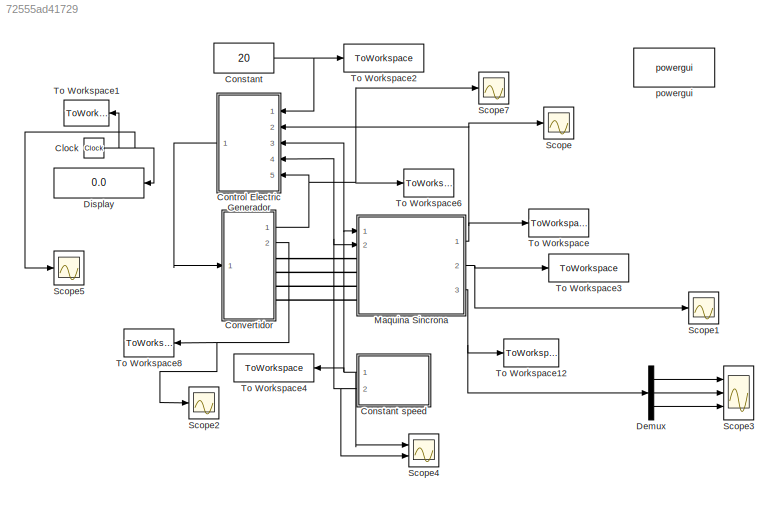
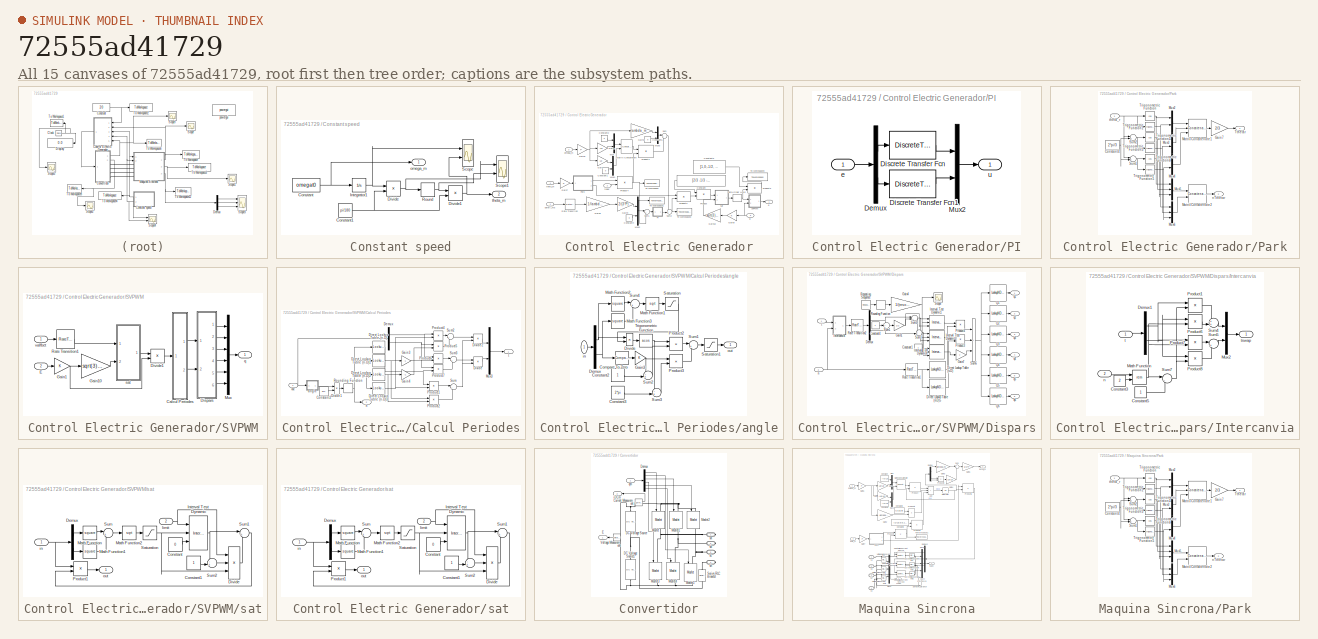
[diagram: thumbnail index - all 15 canvases of the model, root first then tree order]
MODEL mdl_72555ad41729
KIND model
CONFIG AbsTol = auto
CONFIG EnableMultiTasking = on
CONFIG FixedStep = auto
CONFIG MaxStep = parSimulacio.pas
CONFIG MinStep = auto
CONFIG RelTol = parSimulacio.tol
CONFIG SampleTimeConstraint = Unconstrained
CONFIG SolverName = ode45
CONFIG StartTime = parSimulacio.ti
CONFIG StopTime = 0.1
BLOCK [Clock] Clock
BLOCK [Constant] Constant
  Value = 20
BLOCK [SubSystem] Constant speed
  Ports = [0, 2]
  RequestExecContextInheritance = off
BLOCK [Constant] Constant speed/Constant
  Value = omegat0
BLOCK [Constant] Constant speed/Constant1
  Value = pi/180
BLOCK [Product] Constant speed/Divide
  Inputs = */
  Ports = [2, 1]
  RndMeth = Zero
  SaturateOnIntegerOverflow = on
BLOCK [Product] Constant speed/Divide1
  Inputs = **
  Ports = [2, 1]
  RndMeth = Zero
  SaturateOnIntegerOverflow = on
BLOCK [Integrator] Constant speed/Integrator1
  Ports = [1, 1]
BLOCK [Rounding] Constant speed/Round
  Operator = round
BLOCK [Scope] Constant speed/Scope
  Floating = off
  NumInputPorts = 2
  Ports = [2]
  ScopeSpecificationString = Simulink.scopes.TimeScopeBlockCfg('CurrentConfiguration', extmgr.ConfigurationSet(extmgr.Configuration('Core','General UI',true),extmgr.Configuration('Core','Source UI',true),extmgr.Configuration('Sources','WiredSimulink',true,'DataLoggingVariableName','ScopeData3'),extmgr.Configuration('Visuals','Time Domain',true,'SerializedDisplays',{struct('MinYLimReal','0.8584','MaxYLimReal','1.67213','YLabel...<+1500ch>
BLOCK [Scope] Constant speed/Scope1
  Floating = off
  NumInputPorts = 2
  Ports = [2]
  ScopeSpecificationString = Simulink.scopes.TimeScopeBlockCfg('CurrentConfiguration', extmgr.ConfigurationSet(extmgr.Configuration('Core','General UI',true),extmgr.Configuration('Core','Source UI',true),extmgr.Configuration('Sources','WiredSimulink',true,'DataLoggingVariableName','ScopeData4'),extmgr.Configuration('Visuals','Time Domain',true,'SerializedDisplays',{struct('MinYLimReal','-25.00000','MaxYLimReal','225.00000','Y...<+2155ch>
BLOCK [Outport] Constant speed/omega_m
BLOCK [Outport] Constant speed/theta_m
  Port = 2
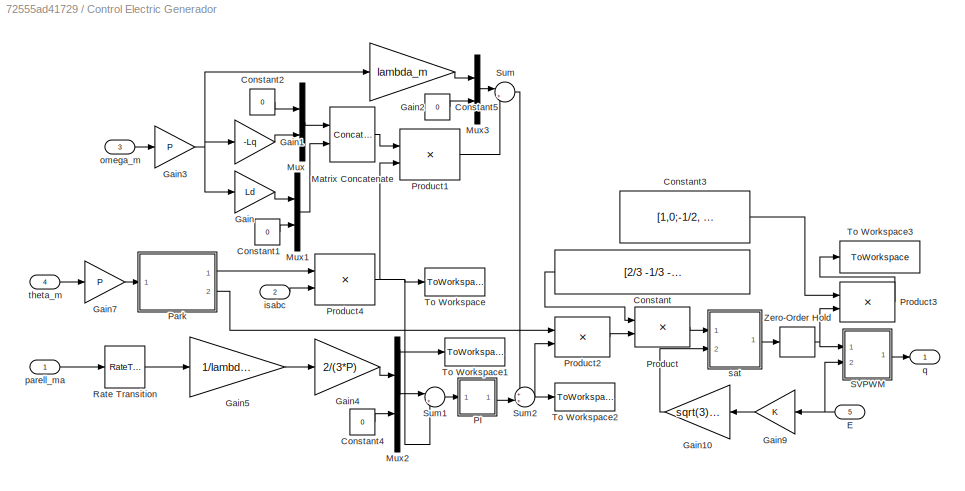
BLOCK [SubSystem] Control Electric Generador
  Ports = [5, 1]
  RequestExecContextInheritance = off
BLOCK [Constant] Control Electric Generador/Constant
  NameLocation = top
  SampleTime = T
  Value = [2/3 -1/3 -1/3; 0 -sqrt(3)/3 sqrt(3)/3]
BLOCK [Constant] Control Electric Generador/Constant1
  SampleTime = T
  Value = 0
BLOCK [Constant] Control Electric Generador/Constant2
  SampleTime = T
  Value = 0
BLOCK [Constant] Control Electric Generador/Constant3
  SampleTime = T
  Value = [1,0;-1/2, -sqrt(3)/2;-1/2, sqrt(3)/2]
BLOCK [Constant] Control Electric Generador/Constant4
  SampleTime = T
  Value = 0
BLOCK [Constant] Control Electric Generador/Constant5
  SampleTime = T
  Value = 0
BLOCK [Inport] Control Electric Generador/E
  Port = 5
  SampleTime = T
BLOCK [Gain] Control Electric Generador/Gain
  Gain = Ld
BLOCK [Gain] Control Electric Generador/Gain1
  Gain = -Lq
BLOCK [Gain] Control Electric Generador/Gain10
  Gain = sqrt(3)/3
  NameLocation = top
BLOCK [Gain] Control Electric Generador/Gain2
  Gain = lambda_m
BLOCK [Gain] Control Electric Generador/Gain3
  Gain = P
BLOCK [Gain] Control Electric Generador/Gain4
  Gain = 2/(3*P)
BLOCK [Gain] Control Electric Generador/Gain5
  Gain = 1/lambda_m
BLOCK [Gain] Control Electric Generador/Gain7
  Gain = P
BLOCK [Gain] Control Electric Generador/Gain9
  NameLocation = top
  SampleTime = T
BLOCK [Concatenate] Control Electric Generador/Matrix Concatenate
  ConcatenateDimension = 2
  Mode = Multidimensional array
  Ports = [2, 1]
BLOCK [Mux] Control Electric Generador/Mux
  DisplayOption = bar
  Inputs = 2
  Ports = [2, 1]
BLOCK [Mux] Control Electric Generador/Mux1
  DisplayOption = bar
  Inputs = 2
  Ports = [2, 1]
BLOCK [Mux] Control Electric Generador/Mux2
  DisplayOption = bar
  Inputs = 2
  Ports = [2, 1]
BLOCK [Mux] Control Electric Generador/Mux3
  DisplayOption = bar
  Inputs = 2
  Ports = [2, 1]
BLOCK [SubSystem] Control Electric Generador/PI
  Ports = [1, 1]
  RequestExecContextInheritance = off
BLOCK [Demux] Control Electric Generador/PI/Demux
  Outputs = 2
  Ports = [1, 2]
BLOCK [DiscreteTransferFcn] Control Electric Generador/PI/Discrete Transfer Fcn
  Denominator = [qGcden]
  InputPortMap = u0
  Numerator = [qGcnum]
  Ports = [1, 1]
  SampleTime = T
BLOCK [DiscreteTransferFcn] Control Electric Generador/PI/Discrete Transfer Fcn1
  Denominator = [dGcden]
  InputPortMap = u0
  Numerator = [dGcnum]
  Ports = [1, 1]
  SampleTime = T
BLOCK [Mux] Control Electric Generador/PI/Mux2
  DisplayOption = bar
  Inputs = 2
  Ports = [2, 1]
BLOCK [Inport] Control Electric Generador/PI/e
BLOCK [Outport] Control Electric Generador/PI/u
BLOCK [SubSystem] Control Electric Generador/Park
  Ports = [1, 2]
  RequestExecContextInheritance = off
BLOCK [Constant] Control Electric Generador/Park/Constant4
  SampleTime = T
  Value = 2*pi/3
BLOCK [Gain] Control Electric Generador/Park/Gain7
  Gain = 2/3
BLOCK [Concatenate] Control Electric Generador/Park/Matrix Concatenate1
  ConcatenateDimension = 2
  Mode = Multidimensional array
  NumInputs = 3
  Ports = [3, 1]
BLOCK [Concatenate] Control Electric Generador/Park/Matrix Concatenate2
  ConcatenateDimension = 2
  Mode = Multidimensional array
  Ports = [2, 1]
BLOCK [Mux] Control Electric Generador/Park/Mux2
  DisplayOption = bar
  Inputs = 2
  Ports = [2, 1]
BLOCK [Mux] Control Electric Generador/Park/Mux3
  DisplayOption = bar
  Inputs = 2
  Ports = [2, 1]
BLOCK [Mux] Control Electric Generador/Park/Mux4
  DisplayOption = bar
  Inputs = 2
  Ports = [2, 1]
BLOCK [Mux] Control Electric Generador/Park/Mux5
  DisplayOption = bar
  Inputs = 3
  Ports = [3, 1]
BLOCK [Mux] Control Electric Generador/Park/Mux6
  DisplayOption = bar
  Inputs = 3
  Ports = [3, 1]
BLOCK [Sum] Control Electric Generador/Park/Sum1
  Inputs = |++
  Ports = [2, 1]
BLOCK [Sum] Control Electric Generador/Park/Sum2
  Inputs = |+-
  Ports = [2, 1]
BLOCK [Trigonometry] Control Electric Generador/Park/Trigonometric Function
  Operator = cos
  Ports = [1, 1]
BLOCK [Trigonometry] Control Electric Generador/Park/Trigonometric Function1
  Ports = [1, 1]
BLOCK [Trigonometry] Control Electric Generador/Park/Trigonometric Function2
  Operator = cos
  Ports = [1, 1]
BLOCK [Trigonometry] Control Electric Generador/Park/Trigonometric Function3
  Ports = [1, 1]
BLOCK [Trigonometry] Control Electric Generador/Park/Trigonometric Function4
  Operator = cos
  Ports = [1, 1]
BLOCK [Trigonometry] Control Electric Generador/Park/Trigonometric Function5
  Ports = [1, 1]
BLOCK [Outport] Control Electric Generador/Park/Tthetar
BLOCK [Outport] Control Electric Generador/Park/nTthetar
  Port = 2
BLOCK [Inport] Control Electric Generador/Park/theta_r
BLOCK [Product] Control Electric Generador/Product
  Multiplication = Matrix(*)
  Ports = [2, 1]
  RndMeth = Zero
BLOCK [Product] Control Electric Generador/Product1
  Multiplication = Matrix(*)
  Ports = [2, 1]
  RndMeth = Zero
BLOCK [Product] Control Electric Generador/Product2
  Multiplication = Matrix(*)
  Ports = [2, 1]
  RndMeth = Zero
BLOCK [Product] Control Electric Generador/Product3
  Multiplication = Matrix(*)
  Ports = [2, 1]
  RndMeth = Zero
BLOCK [Product] Control Electric Generador/Product4
  Multiplication = Matrix(*)
  Ports = [2, 1]
  RndMeth = Zero
BLOCK [RateTransition] Control Electric Generador/Rate Transition
  OutPortSampleTime = T
BLOCK [SubSystem] Control Electric Generador/SVPWM
  Ports = [2, 1]
  RequestExecContextInheritance = off
BLOCK [SubSystem] Control Electric Generador/SVPWM/Calcul Periodes
  Ports = [1, 2]
  RequestExecContextInheritance = off
BLOCK [Constant] Control Electric Generador/SVPWM/Calcul Periodes/Constant2
  SampleTime = T
  Value = pi/3
BLOCK [Demux] Control Electric Generador/SVPWM/Calcul Periodes/Demux
  Outputs = 2
  Ports = [1, 2]
BLOCK [LookupNDDirect] Control Electric Generador/SVPWM/Calcul Periodes/Direct Lookup Table (n-D)
  NumberOfTableDimensions = 1
  Ports = [1, 1]
  Table = [2/3, 1/3, -1/3, -2/3, -1/3, 1/3]
BLOCK [LookupNDDirect] Control Electric Generador/SVPWM/Calcul Periodes/Direct Lookup Table (n-D)1
  NumberOfTableDimensions = 1
  Ports = [1, 1]
  Table = [0, -sqrt(3)/3, -sqrt(3)/3, 0 ,sqrt(3)/3, sqrt(3)/3]
BLOCK [LookupNDDirect] Control Electric Generador/SVPWM/Calcul Periodes/Direct Lookup Table (n-D)2
  NumberOfTableDimensions = 1
  Ports = [1, 1]
  Table = [1/3, -1/3, -2/3, -1/3, 1/3,2/3]
BLOCK [LookupNDDirect] Control Electric Generador/SVPWM/Calcul Periodes/Direct Lookup Table (n-D)3
  NumberOfTableDimensions = 1
  Ports = [1, 1]
  Table = [-sqrt(3)/3, -sqrt(3)/3, 0 ,sqrt(3)/3, sqrt(3)/3,0]
BLOCK [Product] Control Electric Generador/SVPWM/Calcul Periodes/Divide
  Inputs = */
  Ports = [2, 1]
BLOCK [Product] Control Electric Generador/SVPWM/Calcul Periodes/Divide1
  Inputs = */
  Ports = [2, 1]
BLOCK [Product] Control Electric Generador/SVPWM/Calcul Periodes/Divide2
  Inputs = */
  Ports = [2, 1]
BLOCK [Gain] Control Electric Generador/SVPWM/Calcul Periodes/Gain3
  Gain = -1
BLOCK [Gain] Control Electric Generador/SVPWM/Calcul Periodes/Gain4
  Gain = -1
BLOCK [Mux] Control Electric Generador/SVPWM/Calcul Periodes/Mux3
  DisplayOption = bar
  Inputs = 2
  Ports = [2, 1]
BLOCK [Product] Control Electric Generador/SVPWM/Calcul Periodes/Product1
  Ports = [2, 1]
  RndMeth = Zero
BLOCK [Product] Control Electric Generador/SVPWM/Calcul Periodes/Product2
  Ports = [2, 1]
  RndMeth = Zero
BLOCK [Product] Control Electric Generador/SVPWM/Calcul Periodes/Product4
  Ports = [2, 1]
  RndMeth = Zero
BLOCK [Product] Control Electric Generador/SVPWM/Calcul Periodes/Product5
  Ports = [2, 1]
  RndMeth = Zero
BLOCK [Product] Control Electric Generador/SVPWM/Calcul Periodes/Product6
  Ports = [2, 1]
  RndMeth = Zero
BLOCK [Product] Control Electric Generador/SVPWM/Calcul Periodes/Product7
  Ports = [2, 1]
  RndMeth = Zero
BLOCK [Rounding] Control Electric Generador/SVPWM/Calcul Periodes/Rounding Function
BLOCK [Sum] Control Electric Generador/SVPWM/Calcul Periodes/Sum
  Inputs = |+-
  Ports = [2, 1]
BLOCK [Sum] Control Electric Generador/SVPWM/Calcul Periodes/Sum2
  Inputs = |++
  Ports = [2, 1]
BLOCK [Sum] Control Electric Generador/SVPWM/Calcul Periodes/Sum3
  Inputs = |++
  Ports = [2, 1]
BLOCK [SubSystem] Control Electric Generador/SVPWM/Calcul Periodes/angle
  Ports = [1, 1]
  RequestExecContextInheritance = off
BLOCK [Reference] Control Electric Generador/SVPWM/Calcul Periodes/angle/Compare To Zero  REF=simulink/Logic and Bit
Operations/Compare
To Zero
  Ports = [1, 1]
  SourceBlock = simulink/Logic and Bit\nOperations/Compare\nTo Zero
  SourceProductBaseCode = SL
  SourceType = Compare To Zero
BLOCK [Constant] Control Electric Generador/SVPWM/Calcul Periodes/angle/Constant2
  SampleTime = T
BLOCK [Constant] Control Electric Generador/SVPWM/Calcul Periodes/angle/Constant3
  SampleTime = T
  Value = 2*pi
BLOCK [Demux] Control Electric Generador/SVPWM/Calcul Periodes/angle/Demux
  Outputs = 2
  Ports = [1, 2]
BLOCK [Product] Control Electric Generador/SVPWM/Calcul Periodes/angle/Divide
  Inputs = */
  Ports = [2, 1]
BLOCK [Gain] Control Electric Generador/SVPWM/Calcul Periodes/angle/Gain3
  SampleTime = T
BLOCK [Math] Control Electric Generador/SVPWM/Calcul Periodes/angle/Math Function1
  Operator = sqrt
  Ports = [1, 1]
  SignedPower = on
BLOCK [Math] Control Electric Generador/SVPWM/Calcul Periodes/angle/Math Function2
  Operator = square
  Ports = [1, 1]
  SignedPower = on
BLOCK [Math] Control Electric Generador/SVPWM/Calcul Periodes/angle/Math Function3
  Operator = square
  Ports = [1, 1]
  SignedPower = on
BLOCK [Product] Control Electric Generador/SVPWM/Calcul Periodes/angle/Product2
  Ports = [2, 1]
  RndMeth = Zero
BLOCK [Product] Control Electric Generador/SVPWM/Calcul Periodes/angle/Product3
  Ports = [2, 1]
  RndMeth = Zero
BLOCK [Saturate] Control Electric Generador/SVPWM/Calcul Periodes/angle/Saturation
  LowerLimit = 1e-3
  UpperLimit = inf
BLOCK [Saturate] Control Electric Generador/SVPWM/Calcul Periodes/angle/Saturation1
  LowerLimit = 0
  UpperLimit = 2*pi-1e-3
BLOCK [Sum] Control Electric Generador/SVPWM/Calcul Periodes/angle/Sum1
  Inputs = |++
  Ports = [2, 1]
BLOCK [Sum] Control Electric Generador/SVPWM/Calcul Periodes/angle/Sum2
  Inputs = -+|
  Ports = [2, 1]
BLOCK [Sum] Control Electric Generador/SVPWM/Calcul Periodes/angle/Sum3
  Inputs = -+|
  Ports = [2, 1]
BLOCK [Sum] Control Electric Generador/SVPWM/Calcul Periodes/angle/Sum4
  Inputs = |++
  Ports = [2, 1]
BLOCK [Trigonometry] Control Electric Generador/SVPWM/Calcul Periodes/angle/Trigonometric Function
  Operator = acos
  Ports = [1, 1]
BLOCK [Inport] Control Electric Generador/SVPWM/Calcul Periodes/angle/in
  NameLocation = top
BLOCK [Outport] Control Electric Generador/SVPWM/Calcul Periodes/angle/out
BLOCK [Outport] Control Electric Generador/SVPWM/Calcul Periodes/n
  Port = 2
BLOCK [Outport] Control Electric Generador/SVPWM/Calcul Periodes/t
BLOCK [Inport] Control Electric Generador/SVPWM/Calcul Periodes/vsc
BLOCK [SubSystem] Control Electric Generador/SVPWM/Dispars
  Ports = [2, 6]
  RequestExecContextInheritance = off
BLOCK [Constant] Control Electric Generador/SVPWM/Dispars/Constant1
  SampleTime = T/resolucio
BLOCK [Constant] Control Electric Generador/SVPWM/Dispars/Constant4
  SampleTime = T/resolucio
BLOCK [Demux] Control Electric Generador/SVPWM/Dispars/Demux
  Outputs = 2
  Ports = [1, 2]
BLOCK [LookupNDDirect] Control Electric Generador/SVPWM/Dispars/Direct Lookup Table (n-D)
  NumberOfTableDimensions = 1
  Ports = [1, 1]
  Table = [1,3,3,5,5,1]
BLOCK [LookupNDDirect] Control Electric Generador/SVPWM/Dispars/Direct Lookup Table (n-D)5
  NumberOfTableDimensions = 1
  Ports = [1, 1]
  Table = [2,2,4,4,6,6]
BLOCK [Gain] Control Electric Generador/SVPWM/Dispars/Gain1
  Gain = 1/2
  SampleTime = parControl.Electric.Generador.T/64
BLOCK [Gain] Control Electric Generador/SVPWM/Dispars/Gain4
  Gain = 1/(resolucio-1)
  SampleTime = T/resolucio
BLOCK [Gain] Control Electric Generador/SVPWM/Dispars/Gain7
  Gain = 7
BLOCK [SubSystem] Control Electric Generador/SVPWM/Dispars/Intercanvia
  Ports = [2, 1]
  RequestExecContextInheritance = off
BLOCK [Constant] Control Electric Generador/SVPWM/Dispars/Intercanvia/Constant3
  SampleTime = parControl.Electric.Generador.T/64
  Value = 2
BLOCK [Constant] Control Electric Generador/SVPWM/Dispars/Intercanvia/Constant5
  SampleTime = parControl.Electric.Generador.T/64
BLOCK [Demux] Control Electric Generador/SVPWM/Dispars/Intercanvia/Demux1
  Outputs = 2
  Ports = [1, 2]
BLOCK [Math] Control Electric Generador/SVPWM/Dispars/Intercanvia/Math Function
  Operator = rem
  Ports = [2, 1]
  SignedPower = on
BLOCK [Mux] Control Electric Generador/SVPWM/Dispars/Intercanvia/Mux2
  DisplayOption = bar
  Inputs = 2
  Ports = [2, 1]
BLOCK [Product] Control Electric Generador/SVPWM/Dispars/Intercanvia/Product1
  Ports = [2, 1]
  RndMeth = Zero
BLOCK [Product] Control Electric Generador/SVPWM/Dispars/Intercanvia/Product6
  Ports = [2, 1]
  RndMeth = Zero
BLOCK [Product] Control Electric Generador/SVPWM/Dispars/Intercanvia/Product7
  Ports = [2, 1]
  RndMeth = Zero
BLOCK [Product] Control Electric Generador/SVPWM/Dispars/Intercanvia/Product8
  Ports = [2, 1]
  RndMeth = Zero
BLOCK [Sum] Control Electric Generador/SVPWM/Dispars/Intercanvia/Sum4
  Inputs = ++|
  Ports = [2, 1]
BLOCK [Sum] Control Electric Generador/SVPWM/Dispars/Intercanvia/Sum5
  Inputs = |++
  Ports = [2, 1]
BLOCK [Sum] Control Electric Generador/SVPWM/Dispars/Intercanvia/Sum7
  Inputs = |-+
  Ports = [2, 1]
BLOCK [Inport] Control Electric Generador/SVPWM/Dispars/Intercanvia/n
  Port = 2
BLOCK [Inport] Control Electric Generador/SVPWM/Dispars/Intercanvia/t
BLOCK [Outport] Control Electric Generador/SVPWM/Dispars/Intercanvia/tswap
BLOCK [Reference] Control Electric Generador/SVPWM/Dispars/Interval Test Dynamic1  REF=simulink/Logic and Bit
Operations/Interval Test
Dynamic
  Ports = [3, 1]
  SourceBlock = simulink/Logic and Bit\nOperations/Interval Test\nDynamic
  SourceProductBaseCode = SL
  SourceType = Interval Test Dynamic
BLOCK [Reference] Control Electric Generador/SVPWM/Dispars/Interval Test Dynamic2  REF=simulink/Logic and Bit
Operations/Interval Test
Dynamic
  Ports = [3, 1]
  SourceBlock = simulink/Logic and Bit\nOperations/Interval Test\nDynamic
  SourceProductBaseCode = SL
  SourceType = Interval Test Dynamic
BLOCK [Reference] Control Electric Generador/SVPWM/Dispars/Interval Test Dynamic4  REF=simulink/Logic and Bit
Operations/Interval Test
Dynamic
  Ports = [3, 1]
  SourceBlock = simulink/Logic and Bit\nOperations/Interval Test\nDynamic
  SourceProductBaseCode = SL
  SourceType = Interval Test Dynamic
BLOCK [Product] Control Electric Generador/SVPWM/Dispars/Product3
  Ports = [2, 1]
  RndMeth = Zero
BLOCK [Product] Control Electric Generador/SVPWM/Dispars/Product4
  Ports = [2, 1]
  RndMeth = Zero
BLOCK [LookupNDDirect] Control Electric Generador/SVPWM/Dispars/Q1
  NumberOfTableDimensions = 1
  Ports = [1, 1]
  Table = [0,1,1,0,0,0,1,1]
BLOCK [LookupNDDirect] Control Electric Generador/SVPWM/Dispars/Q2
  NumberOfTableDimensions = 1
  Ports = [1, 1]
  Table = [1,1,1,1,0,0,0,0]
BLOCK [LookupNDDirect] Control Electric Generador/SVPWM/Dispars/Q3
  NumberOfTableDimensions = 1
  Ports = [1, 1]
  Table = [0,0,1,1,1,0,0,1]
BLOCK [LookupNDDirect] Control Electric Generador/SVPWM/Dispars/Q4
  NumberOfTableDimensions = 1
  Ports = [1, 1]
  Table = [1,0,0,1,1,1,0,0]
BLOCK [LookupNDDirect] Control Electric Generador/SVPWM/Dispars/Q5
  NumberOfTableDimensions = 1
  Ports = [1, 1]
  Table = [0,0,0,0,1,1,1,1]
BLOCK [LookupNDDirect] Control Electric Generador/SVPWM/Dispars/Q6
  NumberOfTableDimensions = 1
  Ports = [1, 1]
  Table = [1,1,0,0,0,1,1,0]
BLOCK [RateTransition] Control Electric Generador/SVPWM/Dispars/Rate Transition1
  OutPortSampleTime = T/resolucio
BLOCK [RateTransition] Control Electric Generador/SVPWM/Dispars/Rate Transition2
  OutPortSampleTime = T/resolucio
BLOCK [Reference] Control Electric Generador/SVPWM/Dispars/Repeating Sequence  REF=simulink/Sources/Repeating
Sequence
  Ports = [0, 1]
  SourceBlock = simulink/Sources/Repeating\nSequence
  SourceProductBaseCode = SL
  SourceType = Repeating table
BLOCK [Rounding] Control Electric Generador/SVPWM/Dispars/Rounding Function
BLOCK [Scope] Control Electric Generador/SVPWM/Dispars/Scope
  Floating = off
  NumInputPorts = 1
  Ports = [1]
  ScopeSpecificationString = Simulink.scopes.TimeScopeBlockCfg('CurrentConfiguration', extmgr.ConfigurationSet(extmgr.Configuration('Core','General UI',true),extmgr.Configuration('Core','Source UI',true),extmgr.Configuration('Sources','WiredSimulink',true,'DataLoggingVariableName','ScopeData5'),extmgr.Configuration('Visuals','Time Domain',true),extmgr.Configuration('Tools','Plot Navigation',true),extmgr.Configuration('Tools',...<+40ch>
BLOCK [Sum] Control Electric Generador/SVPWM/Dispars/Sum1
  Inputs = -+-
  Ports = [3, 1]
BLOCK [Sum] Control Electric Generador/SVPWM/Dispars/Sum2
  Inputs = |++
  Ports = [2, 1]
BLOCK [Sum] Control Electric Generador/SVPWM/Dispars/Sum3
  Inputs = ++|
  Ports = [2, 1]
BLOCK [Sum] Control Electric Generador/SVPWM/Dispars/Sum6
  IconShape = rectangular
  Inputs = +++
  Ports = [3, 1]
BLOCK [Inport] Control Electric Generador/SVPWM/Dispars/n
  Port = 2
BLOCK [Outport] Control Electric Generador/SVPWM/Dispars/q1
BLOCK [Outport] Control Electric Generador/SVPWM/Dispars/q2
  Port = 2
BLOCK [Outport] Control Electric Generador/SVPWM/Dispars/q3
  Port = 3
BLOCK [Outport] Control Electric Generador/SVPWM/Dispars/q4
  Port = 4
BLOCK [Outport] Control Electric Generador/SVPWM/Dispars/q5
  Port = 5
BLOCK [Outport] Control Electric Generador/SVPWM/Dispars/q6
  Port = 6
BLOCK [Inport] Control Electric Generador/SVPWM/Dispars/t
BLOCK [Product] Control Electric Generador/SVPWM/Divide1
  Inputs = */
  Ports = [2, 1]
BLOCK [Inport] Control Electric Generador/SVPWM/E
  Port = 2
BLOCK [Gain] Control Electric Generador/SVPWM/Gain1
  SampleTime = T
BLOCK [Gain] Control Electric Generador/SVPWM/Gain10
  Gain = sqrt(3)/3
BLOCK [Mux] Control Electric Generador/SVPWM/Mux
  DisplayOption = bar
  Inputs = 6
  Ports = [6, 1]
BLOCK [RateTransition] Control Electric Generador/SVPWM/Rate Transition1
  OutPortSampleTime = T
BLOCK [Outport] Control Electric Generador/SVPWM/q
BLOCK [SubSystem] Control Electric Generador/SVPWM/sat
  Ports = [2, 1]
  RequestExecContextInheritance = off
BLOCK [Constant] Control Electric Generador/SVPWM/sat/Constant
  SampleTime = T
  Value = 0
BLOCK [Constant] Control Electric Generador/SVPWM/sat/Constant1
  SampleTime = T
BLOCK [Demux] Control Electric Generador/SVPWM/sat/Demux
  Outputs = 2
  Ports = [1, 2]
BLOCK [Product] Control Electric Generador/SVPWM/sat/Divide
  Inputs = **/
  Ports = [3, 1]
BLOCK [Reference] Control Electric Generador/SVPWM/sat/Interval Test Dynamic  REF=simulink/Logic and Bit
Operations/Interval Test
Dynamic
  Ports = [3, 1]
  SourceBlock = simulink/Logic and Bit\nOperations/Interval Test\nDynamic
  SourceProductBaseCode = SL
  SourceType = Interval Test Dynamic
BLOCK [Math] Control Electric Generador/SVPWM/sat/Math Function
  Operator = square
  Ports = [1, 1]
  SignedPower = on
BLOCK [Math] Control Electric Generador/SVPWM/sat/Math Function1
  Operator = square
  Ports = [1, 1]
  SignedPower = on
BLOCK [Math] Control Electric Generador/SVPWM/sat/Math Function2
  Operator = sqrt
  Ports = [1, 1]
  SignedPower = on
BLOCK [Product] Control Electric Generador/SVPWM/sat/Product1
  Ports = [2, 1]
  RndMeth = Zero
BLOCK [Saturate] Control Electric Generador/SVPWM/sat/Saturation
  LowerLimit = 1
  UpperLimit = inf
BLOCK [Sum] Control Electric Generador/SVPWM/sat/Sum
  Inputs = |++
  Ports = [2, 1]
BLOCK [Sum] Control Electric Generador/SVPWM/sat/Sum1
  Inputs = |++
  Ports = [2, 1]
BLOCK [Sum] Control Electric Generador/SVPWM/sat/Sum2
  Inputs = -+|
  Ports = [2, 1]
BLOCK [Inport] Control Electric Generador/SVPWM/sat/in
BLOCK [Inport] Control Electric Generador/SVPWM/sat/limit
  Port = 2
BLOCK [Outport] Control Electric Generador/SVPWM/sat/out
BLOCK [Inport] Control Electric Generador/SVPWM/valfbet
BLOCK [Sum] Control Electric Generador/Sum
  Inputs = |++
  Ports = [2, 1]
BLOCK [Sum] Control Electric Generador/Sum1
  Inputs = |+-
  Ports = [2, 1]
BLOCK [Sum] Control Electric Generador/Sum2
  Inputs = ++|
  Ports = [2, 1]
BLOCK [ToWorkspace] Control Electric Generador/To Workspace
  Decimation = parSimulacio.captura.Delmat
  MaxDataPoints = inf
  Ports = [1]
  SampleTime = parSimulacio.captura.Tmostreig
  VariableName = capisqd
BLOCK [ToWorkspace] Control Electric Generador/To Workspace1
  Decimation = parSimulacio.captura.Delmat
  MaxDataPoints = inf
  Ports = [1]
  SampleTime = parSimulacio.captura.Tmostreig
  VariableName = capisqda
BLOCK [ToWorkspace] Control Electric Generador/To Workspace2
  Decimation = parSimulacio.captura.Delmat
  MaxDataPoints = inf
  Ports = [1]
  SampleTime = parSimulacio.captura.Tmostreig
  VariableName = capvscqd
BLOCK [ToWorkspace] Control Electric Generador/To Workspace3
  Decimation = parSimulacio.captura.Delmat
  MaxDataPoints = inf
  Ports = [1]
  SampleTime = parSimulacio.captura.Tmostreig
  VariableName = capvscabc
BLOCK [ZeroOrderHold] Control Electric Generador/Zero-Order Hold
  SampleTime = T
BLOCK [Inport] Control Electric Generador/isabc
  Port = 2
  SampleTime = T
BLOCK [Inport] Control Electric Generador/omega_m
  Port = 3
  SampleTime = T
BLOCK [Inport] Control Electric Generador/parell_ma
BLOCK [Outport] Control Electric Generador/q
BLOCK [SubSystem] Control Electric Generador/sat
  Ports = [2, 1]
  RequestExecContextInheritance = off
BLOCK [Constant] Control Electric Generador/sat/Constant
  SampleTime = T
  Value = 0
BLOCK [Constant] Control Electric Generador/sat/Constant1
  SampleTime = T
BLOCK [Demux] Control Electric Generador/sat/Demux
  Outputs = 2
  Ports = [1, 2]
BLOCK [Product] Control Electric Generador/sat/Divide
  Inputs = **/
  Ports = [3, 1]
BLOCK [Reference] Control Electric Generador/sat/Interval Test Dynamic  REF=simulink/Logic and Bit
Operations/Interval Test
Dynamic
  Ports = [3, 1]
  SourceBlock = simulink/Logic and Bit\nOperations/Interval Test\nDynamic
  SourceProductBaseCode = SL
  SourceType = Interval Test Dynamic
BLOCK [Math] Control Electric Generador/sat/Math Function
  Operator = square
  Ports = [1, 1]
  SignedPower = on
BLOCK [Math] Control Electric Generador/sat/Math Function1
  Operator = square
  Ports = [1, 1]
  SignedPower = on
BLOCK [Math] Control Electric Generador/sat/Math Function2
  Operator = sqrt
  Ports = [1, 1]
  SignedPower = on
BLOCK [Product] Control Electric Generador/sat/Product1
  Ports = [2, 1]
  RndMeth = Zero
BLOCK [Saturate] Control Electric Generador/sat/Saturation
  LowerLimit = 1
  UpperLimit = inf
BLOCK [Sum] Control Electric Generador/sat/Sum
  Inputs = |++
  Ports = [2, 1]
BLOCK [Sum] Control Electric Generador/sat/Sum1
  Inputs = |++
  Ports = [2, 1]
BLOCK [Sum] Control Electric Generador/sat/Sum2
  Inputs = -+|
  Ports = [2, 1]
BLOCK [Inport] Control Electric Generador/sat/in
BLOCK [Inport] Control Electric Generador/sat/limit
  Port = 2
BLOCK [Outport] Control Electric Generador/sat/out
BLOCK [Inport] Control Electric Generador/theta_m
  Port = 4
  PortDimensions = 1
  SampleTime = T
BLOCK [SubSystem] Convertidor
  Ports = [1, 2, 0, 0, 0, 0, 4]
  RequestExecContextInheritance = off
BLOCK [Reference] Convertidor/Current Measurement  REF=spsCurrentMeasurementLib/Current Measurement
  Ports = [0, 1, 0, 0, 0, 1, 1]
  SourceBlock = spsCurrentMeasurementLib/Current Measurement
  SourceProductBaseCode = PS
  SourceType = Current Measurement
  UserDataPersistent = on
BLOCK [Reference] Convertidor/DC Voltage Source  REF=spsDCVoltageSourceLib/DC Voltage Source
  NameLocation = right
  Ports = [0, 0, 0, 0, 0, 1, 1]
  SourceBlock = spsDCVoltageSourceLib/DC Voltage Source
  SourceProductBaseCode = PS
  SourceType = DC Voltage Source
BLOCK [Reference] Convertidor/DC Voltage Source1  REF=spsDCVoltageSourceLib/DC Voltage Source
  NameLocation = right
  Ports = [0, 0, 0, 0, 0, 1, 1]
  SourceBlock = spsDCVoltageSourceLib/DC Voltage Source
  SourceProductBaseCode = PS
  SourceType = DC Voltage Source
BLOCK [Demux] Convertidor/Demux
  Outputs = 6
  Ports = [1, 6]
BLOCK [Outport] Convertidor/E
  NameLocation = top
BLOCK [Reference] Convertidor/Mosfet  REF=spsMosfetLib/Mosfet
  NameLocation = left
  Ports = [1, 1, 0, 0, 0, 1, 1]
  SourceBlock = spsMosfetLib/Mosfet
  SourceProductBaseCode = PS
  SourceType = Mosfet
BLOCK [Reference] Convertidor/Mosfet1  REF=spsMosfetLib/Mosfet
  NameLocation = left
  Ports = [1, 1, 0, 0, 0, 1, 1]
  SourceBlock = spsMosfetLib/Mosfet
  SourceProductBaseCode = PS
  SourceType = Mosfet
BLOCK [Reference] Convertidor/Mosfet2  REF=spsMosfetLib/Mosfet
  NameLocation = left
  Ports = [1, 1, 0, 0, 0, 1, 1]
  SourceBlock = spsMosfetLib/Mosfet
  SourceProductBaseCode = PS
  SourceType = Mosfet
BLOCK [Reference] Convertidor/Mosfet3  REF=spsMosfetLib/Mosfet
  NameLocation = left
  Ports = [1, 1, 0, 0, 0, 1, 1]
  SourceBlock = spsMosfetLib/Mosfet
  SourceProductBaseCode = PS
  SourceType = Mosfet
BLOCK [Reference] Convertidor/Mosfet4  REF=spsMosfetLib/Mosfet
  NameLocation = left
  Ports = [1, 1, 0, 0, 0, 1, 1]
  SourceBlock = spsMosfetLib/Mosfet
  SourceProductBaseCode = PS
  SourceType = Mosfet
BLOCK [Reference] Convertidor/Mosfet5  REF=spsMosfetLib/Mosfet
  NameLocation = left
  Ports = [1, 1, 0, 0, 0, 1, 1]
  SourceBlock = spsMosfetLib/Mosfet
  SourceProductBaseCode = PS
  SourceType = Mosfet
BLOCK [Reference] Convertidor/Series RLC Branch3  REF=spsSeriesRLCBranchLib/Series RLC Branch
  NameLocation = right
  Ports = [0, 0, 0, 0, 0, 1, 1]
  SourceBlock = spsSeriesRLCBranchLib/Series RLC Branch
  SourceProductBaseCode = PS
  SourceType = Series RLC Branch
BLOCK [Reference] Convertidor/Voltage Measurement  REF=spsVoltageMeasurementLib/Voltage Measurement
  Ports = [0, 1, 0, 0, 0, 2]
  SourceBlock = spsVoltageMeasurementLib/Voltage Measurement
  SourceProductBaseCode = PS
  SourceType = Voltage Measurement
  UserDataPersistent = on
BLOCK [Outport] Convertidor/iDCm
  Port = 2
BLOCK [Inport] Convertidor/qm
BLOCK [PMIOPort] Convertidor/sa
  Side = Right
BLOCK [PMIOPort] Convertidor/sb
  Port = 2
  Side = Right
BLOCK [PMIOPort] Convertidor/sc
  Port = 3
  Side = Right
BLOCK [PMIOPort] Convertidor/sn
  Port = 4
  Side = Right
BLOCK [Demux] Demux
  Outputs = 3
  Ports = [1, 3]
BLOCK [Display] Display
  Decimation = 1
  NameLocation = top
  Ports = [1]
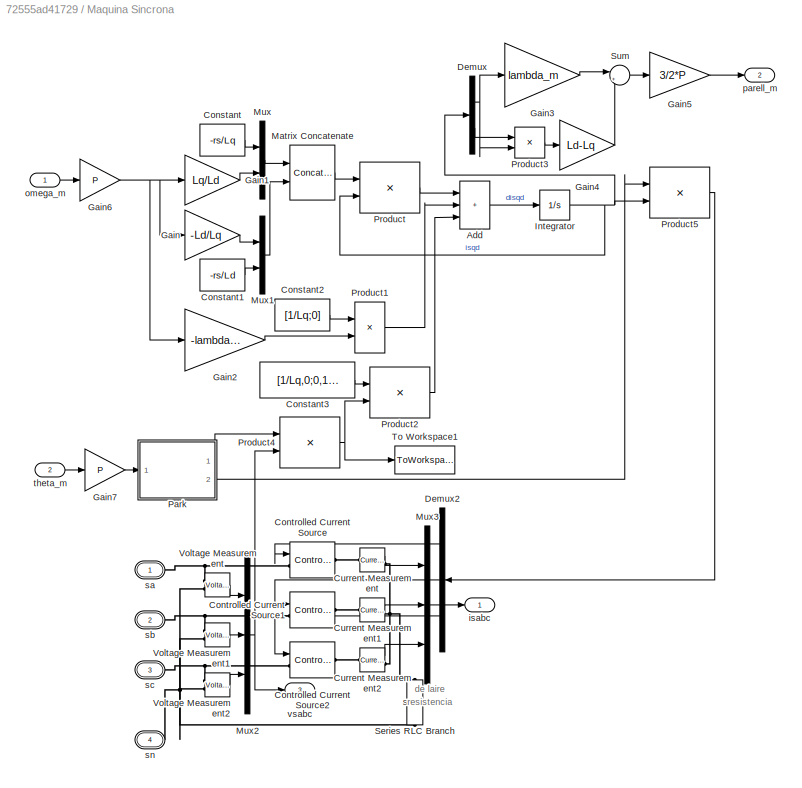
BLOCK [SubSystem] Maquina Sincrona
  Ports = [2, 3, 0, 0, 0, 4]
  RequestExecContextInheritance = off
BLOCK [Sum] Maquina Sincrona/Add
  IconShape = rectangular
  Inputs = +++
  Ports = [3, 1]
BLOCK [Constant] Maquina Sincrona/Constant
  Value = -rs/Lq
BLOCK [Constant] Maquina Sincrona/Constant1
  Value = -rs/Ld
BLOCK [Constant] Maquina Sincrona/Constant2
  Value = [1/Lq;0]
BLOCK [Constant] Maquina Sincrona/Constant3
  Value = [1/Lq,0;0,1/Ld]
BLOCK [Reference] Maquina Sincrona/Controlled Current Source  REF=spsControlledCurrentSourceLib/Controlled Current Source
  Ports = [1, 0, 0, 0, 0, 1, 1]
  SourceBlock = spsControlledCurrentSourceLib/Controlled Current Source
  SourceProductBaseCode = PS
  SourceType = Controlled Current Source
BLOCK [Reference] Maquina Sincrona/Controlled Current Source1  REF=spsControlledCurrentSourceLib/Controlled Current Source
  Ports = [1, 0, 0, 0, 0, 1, 1]
  SourceBlock = spsControlledCurrentSourceLib/Controlled Current Source
  SourceProductBaseCode = PS
  SourceType = Controlled Current Source
BLOCK [Reference] Maquina Sincrona/Controlled Current Source2  REF=spsControlledCurrentSourceLib/Controlled Current Source
  Ports = [1, 0, 0, 0, 0, 1, 1]
  SourceBlock = spsControlledCurrentSourceLib/Controlled Current Source
  SourceProductBaseCode = PS
  SourceType = Controlled Current Source
BLOCK [Reference] Maquina Sincrona/Current Measurement  REF=spsCurrentMeasurementLib/Current Measurement
  Ports = [0, 1, 0, 0, 0, 1, 1]
  SourceBlock = spsCurrentMeasurementLib/Current Measurement
  SourceProductBaseCode = PS
  SourceType = Current Measurement
BLOCK [Reference] Maquina Sincrona/Current Measurement1  REF=spsCurrentMeasurementLib/Current Measurement
  Ports = [0, 1, 0, 0, 0, 1, 1]
  SourceBlock = spsCurrentMeasurementLib/Current Measurement
  SourceProductBaseCode = PS
  SourceType = Current Measurement
BLOCK [Reference] Maquina Sincrona/Current Measurement2  REF=spsCurrentMeasurementLib/Current Measurement
  Ports = [0, 1, 0, 0, 0, 1, 1]
  SourceBlock = spsCurrentMeasurementLib/Current Measurement
  SourceProductBaseCode = PS
  SourceType = Current Measurement
BLOCK [Demux] Maquina Sincrona/Demux
  Outputs = 2
  Ports = [1, 2]
BLOCK [Demux] Maquina Sincrona/Demux2
  NameLocation = top
  Outputs = 3
  Ports = [1, 3]
BLOCK [Gain] Maquina Sincrona/Gain
  Gain = -Ld/Lq
BLOCK [Gain] Maquina Sincrona/Gain1
  Gain = Lq/Ld
BLOCK [Gain] Maquina Sincrona/Gain2
  Gain = -lambda_m
BLOCK [Gain] Maquina Sincrona/Gain3
  Gain = lambda_m
BLOCK [Gain] Maquina Sincrona/Gain4
  Gain = Ld-Lq
BLOCK [Gain] Maquina Sincrona/Gain5
  Gain = 3/2*P
BLOCK [Gain] Maquina Sincrona/Gain6
  Gain = P
BLOCK [Gain] Maquina Sincrona/Gain7
  Gain = P
BLOCK [Integrator] Maquina Sincrona/Integrator
  InitialCondition = isqd0
  Ports = [1, 1]
BLOCK [Concatenate] Maquina Sincrona/Matrix Concatenate
  ConcatenateDimension = 2
  Mode = Multidimensional array
  Ports = [2, 1]
BLOCK [Mux] Maquina Sincrona/Mux
  DisplayOption = bar
  Inputs = 2
  Ports = [2, 1]
BLOCK [Mux] Maquina Sincrona/Mux1
  DisplayOption = bar
  Inputs = 2
  Ports = [2, 1]
BLOCK [Mux] Maquina Sincrona/Mux2
  DisplayOption = bar
  Inputs = 3
  Ports = [3, 1]
BLOCK [Mux] Maquina Sincrona/Mux3
  DisplayOption = bar
  Inputs = 3
  Ports = [3, 1]
BLOCK [SubSystem] Maquina Sincrona/Park
  Ports = [1, 2]
  RequestExecContextInheritance = off
BLOCK [Constant] Maquina Sincrona/Park/Constant4
  Value = 2*pi/3
BLOCK [Gain] Maquina Sincrona/Park/Gain7
  Gain = 2/3
BLOCK [Concatenate] Maquina Sincrona/Park/Matrix Concatenate1
  ConcatenateDimension = 2
  Mode = Multidimensional array
  NumInputs = 3
  Ports = [3, 1]
BLOCK [Concatenate] Maquina Sincrona/Park/Matrix Concatenate2
  ConcatenateDimension = 2
  Mode = Multidimensional array
  Ports = [2, 1]
BLOCK [Mux] Maquina Sincrona/Park/Mux2
  DisplayOption = bar
  Inputs = 2
  Ports = [2, 1]
BLOCK [Mux] Maquina Sincrona/Park/Mux3
  DisplayOption = bar
  Inputs = 2
  Ports = [2, 1]
BLOCK [Mux] Maquina Sincrona/Park/Mux4
  DisplayOption = bar
  Inputs = 2
  Ports = [2, 1]
BLOCK [Mux] Maquina Sincrona/Park/Mux5
  DisplayOption = bar
  Inputs = 3
  Ports = [3, 1]
BLOCK [Mux] Maquina Sincrona/Park/Mux6
  DisplayOption = bar
  Inputs = 3
  Ports = [3, 1]
BLOCK [Sum] Maquina Sincrona/Park/Sum1
  Inputs = |++
  Ports = [2, 1]
BLOCK [Sum] Maquina Sincrona/Park/Sum2
  Inputs = |+-
  Ports = [2, 1]
BLOCK [Trigonometry] Maquina Sincrona/Park/Trigonometric Function
  Operator = cos
  Ports = [1, 1]
BLOCK [Trigonometry] Maquina Sincrona/Park/Trigonometric Function1
  Ports = [1, 1]
BLOCK [Trigonometry] Maquina Sincrona/Park/Trigonometric Function2
  Operator = cos
  Ports = [1, 1]
BLOCK [Trigonometry] Maquina Sincrona/Park/Trigonometric Function3
  Ports = [1, 1]
BLOCK [Trigonometry] Maquina Sincrona/Park/Trigonometric Function4
  Operator = cos
  Ports = [1, 1]
BLOCK [Trigonometry] Maquina Sincrona/Park/Trigonometric Function5
  Ports = [1, 1]
BLOCK [Outport] Maquina Sincrona/Park/Tthetar
BLOCK [Outport] Maquina Sincrona/Park/nTthetar
  Port = 2
BLOCK [Inport] Maquina Sincrona/Park/theta_r
BLOCK [Product] Maquina Sincrona/Product
  Multiplication = Matrix(*)
  Ports = [2, 1]
  RndMeth = Zero
BLOCK [Product] Maquina Sincrona/Product1
  Ports = [2, 1]
  RndMeth = Zero
BLOCK [Product] Maquina Sincrona/Product2
  Multiplication = Matrix(*)
  Ports = [2, 1]
  RndMeth = Zero
BLOCK [Product] Maquina Sincrona/Product3
  Ports = [2, 1]
  RndMeth = Zero
BLOCK [Product] Maquina Sincrona/Product4
  Multiplication = Matrix(*)
  Ports = [2, 1]
  RndMeth = Zero
BLOCK [Product] Maquina Sincrona/Product5
  Multiplication = Matrix(*)
  Ports = [2, 1]
  RndMeth = Zero
BLOCK [Reference] Maquina Sincrona/Series RLC Branch  REF=spsSeriesRLCBranchLib/Series RLC Branch
  NameLocation = left
  Ports = [0, 0, 0, 0, 0, 1, 1]
  SourceBlock = spsSeriesRLCBranchLib/Series RLC Branch
  SourceProductBaseCode = PS
  SourceType = Series RLC Branch
BLOCK [Sum] Maquina Sincrona/Sum
  Inputs = |++
  Ports = [2, 1]
BLOCK [ToWorkspace] Maquina Sincrona/To Workspace1
  Decimation = parSimulacio.captura.Delmat
  MaxDataPoints = inf
  Ports = [1]
  SampleTime = parSimulacio.captura.Tmostreig
  VariableName = capvsqd
BLOCK [Reference] Maquina Sincrona/Voltage Measurement  REF=spsVoltageMeasurementLib/Voltage Measurement
  Ports = [0, 1, 0, 0, 0, 2]
  SourceBlock = spsVoltageMeasurementLib/Voltage Measurement
  SourceProductBaseCode = PS
  SourceType = Voltage Measurement
BLOCK [Reference] Maquina Sincrona/Voltage Measurement1  REF=spsVoltageMeasurementLib/Voltage Measurement
  Ports = [0, 1, 0, 0, 0, 2]
  SourceBlock = spsVoltageMeasurementLib/Voltage Measurement
  SourceProductBaseCode = PS
  SourceType = Voltage Measurement
BLOCK [Reference] Maquina Sincrona/Voltage Measurement2  REF=spsVoltageMeasurementLib/Voltage Measurement
  Ports = [0, 1, 0, 0, 0, 2]
  SourceBlock = spsVoltageMeasurementLib/Voltage Measurement
  SourceProductBaseCode = PS
  SourceType = Voltage Measurement
BLOCK [Outport] Maquina Sincrona/isabc
BLOCK [Inport] Maquina Sincrona/omega_m
BLOCK [Outport] Maquina Sincrona/parell_m
  Port = 2
BLOCK [PMIOPort] Maquina Sincrona/sa
  Side = Left
  Tag = PMCPort
BLOCK [PMIOPort] Maquina Sincrona/sb
  Port = 2
  Side = Left
  Tag = PMCPort
BLOCK [PMIOPort] Maquina Sincrona/sc
  Port = 3
  Side = Left
  Tag = PMCPort
BLOCK [PMIOPort] Maquina Sincrona/sn
  Port = 4
  Side = Left
  Tag = PMCPort
BLOCK [Inport] Maquina Sincrona/theta_m
  Port = 2
  PortDimensions = 1
BLOCK [Outport] Maquina Sincrona/vsabc
  Port = 3
BLOCK [Scope] Scope
  Floating = off
  NumInputPorts = 1
  Ports = [1]
  ScopeSpecificationString = Simulink.scopes.TimeScopeBlockCfg('CurrentConfiguration', extmgr.ConfigurationSet(extmgr.Configuration('Core','General UI',true),extmgr.Configuration('Core','Source UI',true),extmgr.Configuration('Sources','WiredSimulink',true),extmgr.Configuration('Visuals','Time Domain',true,'SerializedDisplays',{struct('MinYLimReal','-8.55786','MaxYLimReal','8.72296','YLabelReal','','MinYLimMag','0.00000','MaxY...<+1457ch>
BLOCK [Scope] Scope1
  Floating = off
  NumInputPorts = 1
  Ports = [1]
  ScopeSpecificationString = Simulink.scopes.TimeScopeBlockCfg('CurrentConfiguration', extmgr.ConfigurationSet(extmgr.Configuration('Core','General UI',true),extmgr.Configuration('Core','Source UI',true),extmgr.Configuration('Sources','WiredSimulink',true,'DataLoggingVariableName','ScopeData1'),extmgr.Configuration('Visuals','Time Domain',true,'SerializedDisplays',{struct('MinYLimReal','-4.02814','MaxYLimReal','25.0558','YLab...<+1482ch>
BLOCK [Scope] Scope2
  Floating = off
  NumInputPorts = 1
  Ports = [1]
  ScopeSpecificationString = Simulink.scopes.TimeScopeBlockCfg('CurrentConfiguration', extmgr.ConfigurationSet(extmgr.Configuration('Core','General UI',true),extmgr.Configuration('Core','Source UI',true),extmgr.Configuration('Sources','WiredSimulink',true,'DataLoggingVariableName','ScopeData2'),extmgr.Configuration('Visuals','Time Domain',true,'SerializedDisplays',{struct('MinYLimReal','-7.87591','MaxYLimReal','0.94157','YLab...<+1418ch>
BLOCK [Scope] Scope3
  Floating = off
  NumInputPorts = 3
  Ports = [3]
  ScopeSpecificationString = Simulink.scopes.TimeScopeBlockCfg('CurrentConfiguration', extmgr.ConfigurationSet(extmgr.Configuration('Core','General UI',true),extmgr.Configuration('Core','Source UI',true),extmgr.Configuration('Sources','WiredSimulink',true,'DataLoggingVariableName','ScopeData1'),extmgr.Configuration('Visuals','Time Domain',true,'SerializedDisplays',{struct('MinYLimReal','-15.07623','MaxYLimReal','15.07812','YL...<+2797ch>
BLOCK [Scope] Scope4
  Floating = off
  NumInputPorts = 2
  Ports = [2]
  ScopeSpecificationString = Simulink.scopes.TimeScopeBlockCfg('CurrentConfiguration', extmgr.ConfigurationSet(extmgr.Configuration('Core','General UI',true),extmgr.Configuration('Core','Source UI',true),extmgr.Configuration('Sources','WiredSimulink',true,'DataLoggingVariableName','ScopeData1'),extmgr.Configuration('Visuals','Time Domain',true,'SerializedDisplays',{struct('MinYLimReal','7.45329','MaxYLimReal','27.45329','YLab...<+2075ch>
BLOCK [Scope] Scope5
  Floating = off
  NumInputPorts = 1
  Ports = [1]
  ScopeSpecificationString = Simulink.scopes.TimeScopeBlockCfg('CurrentConfiguration', extmgr.ConfigurationSet(extmgr.Configuration('Core','General UI',true),extmgr.Configuration('Core','Source UI',true),extmgr.Configuration('Sources','WiredSimulink',true,'DataLoggingVariableName','ScopeData2'),extmgr.Configuration('Visuals','Time Domain',true,'SerializedDisplays',{struct('MinYLimReal','-0.0125','MaxYLimReal','0.1125','YLabel...<+1999ch>
BLOCK [Scope] Scope7
  Floating = off
  NumInputPorts = 1
  Ports = [1]
  ScopeSpecificationString = Simulink.scopes.TimeScopeBlockCfg('CurrentConfiguration', extmgr.ConfigurationSet(extmgr.Configuration('Core','General UI',true),extmgr.Configuration('Core','Source UI',true),extmgr.Configuration('Sources','WiredSimulink',true,'DataLoggingVariableName','ScopeData6'),extmgr.Configuration('Visuals','Time Domain',true,'SerializedDisplays',{struct('MinYLimReal','14.00000','MaxYLimReal','34.00000','YLa...<+1449ch>
BLOCK [ToWorkspace] To Workspace
  Decimation = parSimulacio.captura.Delmat
  MaxDataPoints = inf
  Ports = [1]
  SampleTime = parSimulacio.captura.Tmostreig
  VariableName = capisabc
BLOCK [ToWorkspace] To Workspace1
  Decimation = parSimulacio.captura.Delmat
  MaxDataPoints = inf
  NameLocation = top
  Ports = [1]
  SampleTime = parSimulacio.captura.Tmostreig
  VariableName = capt
BLOCK [ToWorkspace] To Workspace12
  Decimation = parSimulacio.captura.Delmat
  MaxDataPoints = inf
  Ports = [1]
  SampleTime = parSimulacio.captura.Tmostreig
  VariableName = capvsabc
BLOCK [ToWorkspace] To Workspace2
  Decimation = parSimulacio.captura.Delmat
  MaxDataPoints = inf
  Ports = [1]
  SampleTime = parSimulacio.captura.Tmostreig
  VariableName = capparell_ma
BLOCK [ToWorkspace] To Workspace3
  Decimation = parSimulacio.captura.Delmat
  MaxDataPoints = inf
  Ports = [1]
  SampleTime = parSimulacio.captura.Tmostreig
  VariableName = capparell_m
BLOCK [ToWorkspace] To Workspace4
  Decimation = parSimulacio.captura.Delmat
  MaxDataPoints = inf
  NameLocation = top
  Ports = [1]
  SampleTime = parSimulacio.captura.Tmostreig
  VariableName = capomega_m
BLOCK [ToWorkspace] To Workspace6
  Decimation = parSimulacio.captura.Delmat
  MaxDataPoints = inf
  Ports = [1]
  SampleTime = parSimulacio.captura.Tmostreig
  VariableName = capE
BLOCK [ToWorkspace] To Workspace8
  Decimation = parSimulacio.captura.Delmat
  MaxDataPoints = inf
  NameLocation = top
  Ports = [1]
  SampleTime = parSimulacio.captura.Tmostreig
  VariableName = capiDCm
BLOCK [Reference] powergui  REF=spspowerguiLib/powergui
  Ports = []
  Priority = 1
  SourceBlock = spspowerguiLib/powergui
  SourceProductBaseCode = PS
  SourceType = PSB option menu block
ANNOTATION Maquina Sincrona: resistencia de laire
NET Clock:1 -> Display:1, Scope5:1, To Workspace1:1
NET Constant speed/Constant1:1 -> Constant speed/Divide1:2, Constant speed/Divide:2
NET Constant speed/Constant:1 -> Constant speed/Integrator1:1, Constant speed/omega_m:1
NET Constant speed/Divide1:1 -> Constant speed/Scope:2, Constant speed/theta_m:1
NET Constant speed/Divide:1 -> Constant speed/Round:1, Constant speed/Scope1:1
NET Constant speed/Integrator1:1 -> Constant speed/Divide:1, Constant speed/Scope:1
NET Constant speed/Round:1 -> Constant speed/Divide1:1, Constant speed/Scope1:2
NET Constant speed:1 -> Control Electric Generador:3, Maquina Sincrona:1, Scope4:1, To Workspace4:1
NET Constant speed:2 -> Control Electric Generador:4, Maquina Sincrona:2, Scope4:2
NET Constant:1 -> Control Electric Generador:1, To Workspace2:1
LINE Control Electric Generador/Constant1:1 -> Control Electric Generador/Mux1:2
LINE Control Electric Generador/Constant2:1 -> Control Electric Generador/Mux:1
LINE Control Electric Generador/Constant3:1 -> Control Electric Generador/Product3:1
LINE Control Electric Generador/Constant4:1 -> Control Electric Generador/Mux2:2
LINE Control Electric Generador/Constant5:1 -> Control Electric Generador/Mux3:2
LINE Control Electric Generador/Constant:1 -> Control Electric Generador/Product:1
NET Control Electric Generador/E:1 -> Control Electric Generador/Gain9:1, Control Electric Generador/SVPWM:2
LINE Control Electric Generador/Gain10:1 -> Control Electric Generador/sat:2
LINE Control Electric Generador/Gain1:1 -> Control Electric Generador/Mux:2
LINE Control Electric Generador/Gain2:1 -> Control Electric Generador/Mux3:1
NET Control Electric Generador/Gain3:1 -> Control Electric Generador/Gain1:1, Control Electric Generador/Gain2:1, Control Electric Generador/Gain:1
LINE Control Electric Generador/Gain4:1 -> Control Electric Generador/Mux2:1
LINE Control Electric Generador/Gain5:1 -> Control Electric Generador/Gain4:1
LINE Control Electric Generador/Gain7:1 -> Control Electric Generador/Park:1
LINE Control Electric Generador/Gain9:1 -> Control Electric Generador/Gain10:1
LINE Control Electric Generador/Gain:1 -> Control Electric Generador/Mux1:1
LINE Control Electric Generador/Matrix Concatenate:1 -> Control Electric Generador/Product1:1
LINE Control Electric Generador/Mux1:1 -> Control Electric Generador/Matrix Concatenate:2
NET Control Electric Generador/Mux2:1 -> Control Electric Generador/Sum1:1, Control Electric Generador/To Workspace1:1
LINE Control Electric Generador/Mux3:1 -> Control Electric Generador/Sum:1
LINE Control Electric Generador/Mux:1 -> Control Electric Generador/Matrix Concatenate:1
LINE Control Electric Generador/PI/Demux:1 -> Control Electric Generador/PI/Discrete Transfer Fcn:1
LINE Control Electric Generador/PI/Demux:2 -> Control Electric Generador/PI/Discrete Transfer Fcn1:1
LINE Control Electric Generador/PI/Discrete Transfer Fcn1:1 -> Control Electric Generador/PI/Mux2:2
LINE Control Electric Generador/PI/Discrete Transfer Fcn:1 -> Control Electric Generador/PI/Mux2:1
LINE Control Electric Generador/PI/Mux2:1 -> Control Electric Generador/PI/u:1
LINE Control Electric Generador/PI/e:1 -> Control Electric Generador/PI/Demux:1
LINE Control Electric Generador/PI:1 -> Control Electric Generador/Sum2:2
NET Control Electric Generador/Park/Constant4:1 -> Control Electric Generador/Park/Sum1:2, Control Electric Generador/Park/Sum2:2
LINE Control Electric Generador/Park/Gain7:1 -> Control Electric Generador/Park/Tthetar:1
LINE Control Electric Generador/Park/Matrix Concatenate1:1 -> Control Electric Generador/Park/Gain7:1
LINE Control Electric Generador/Park/Matrix Concatenate2:1 -> Control Electric Generador/Park/nTthetar:1
LINE Control Electric Generador/Park/Mux2:1 -> Control Electric Generador/Park/Matrix Concatenate1:1
LINE Control Electric Generador/Park/Mux3:1 -> Control Electric Generador/Park/Matrix Concatenate1:2
LINE Control Electric Generador/Park/Mux4:1 -> Control Electric Generador/Park/Matrix Concatenate1:3
LINE Control Electric Generador/Park/Mux5:1 -> Control Electric Generador/Park/Matrix Concatenate2:1
LINE Control Electric Generador/Park/Mux6:1 -> Control Electric Generador/Park/Matrix Concatenate2:2
NET Control Electric Generador/Park/Sum1:1 -> Control Electric Generador/Park/Trigonometric Function4:1, Control Electric Generador/Park/Trigonometric Function5:1
NET Control Electric Generador/Park/Sum2:1 -> Control Electric Generador/Park/Trigonometric Function2:1, Control Electric Generador/Park/Trigonometric Function3:1
NET Control Electric Generador/Park/Trigonometric Function1:1 -> Control Electric Generador/Park/Mux2:2, Control Electric Generador/Park/Mux6:1
NET Control Electric Generador/Park/Trigonometric Function2:1 -> Control Electric Generador/Park/Mux3:1, Control Electric Generador/Park/Mux5:2
NET Control Electric Generador/Park/Trigonometric Function3:1 -> Control Electric Generador/Park/Mux3:2, Control Electric Generador/Park/Mux6:2
NET Control Electric Generador/Park/Trigonometric Function4:1 -> Control Electric Generador/Park/Mux4:1, Control Electric Generador/Park/Mux5:3
NET Control Electric Generador/Park/Trigonometric Function5:1 -> Control Electric Generador/Park/Mux4:2, Control Electric Generador/Park/Mux6:3
NET Control Electric Generador/Park/Trigonometric Function:1 -> Control Electric Generador/Park/Mux2:1, Control Electric Generador/Park/Mux5:1
NET Control Electric Generador/Park/theta_r:1 -> Control Electric Generador/Park/Sum1:1, Control Electric Generador/Park/Sum2:1, Control Electric Generador/Park/Trigonometric Function1:1, Control Electric Generador/Park/Trigonometric Function:1
LINE Control Electric Generador/Park:1 -> Control Electric Generador/Product4:1
LINE Control Electric Generador/Park:2 -> Control Electric Generador/Product2:1
LINE Control Electric Generador/Product1:1 -> Control Electric Generador/Sum:2
LINE Control Electric Generador/Product2:1 -> Control Electric Generador/Product:2
LINE Control Electric Generador/Product3:1 -> Control Electric Generador/To Workspace3:1
NET Control Electric Generador/Product4:1 -> Control Electric Generador/Product1:2, Control Electric Generador/Sum1:2, Control Electric Generador/To Workspace:1
LINE Control Electric Generador/Product:1 -> Control Electric Generador/sat:1
LINE Control Electric Generador/Rate Transition:1 -> Control Electric Generador/Gain5:1
LINE Control Electric Generador/SVPWM/Calcul Periodes/Constant2:1 -> Control Electric Generador/SVPWM/Calcul Periodes/Divide1:2
NET Control Electric Generador/SVPWM/Calcul Periodes/Demux:1 -> Control Electric Generador/SVPWM/Calcul Periodes/Product4:1, Control Electric Generador/SVPWM/Calcul Periodes/Product6:1
NET Control Electric Generador/SVPWM/Calcul Periodes/Demux:2 -> Control Electric Generador/SVPWM/Calcul Periodes/Product5:1, Control Electric Generador/SVPWM/Calcul Periodes/Product7:1
NET Control Electric Generador/SVPWM/Calcul Periodes/Direct Lookup Table (n-D)1:1 -> Control Electric Generador/SVPWM/Calcul Periodes/Gain3:1, Control Electric Generador/SVPWM/Calcul Periodes/Product2:1
NET Control Electric Generador/SVPWM/Calcul Periodes/Direct Lookup Table (n-D)2:1 -> Control Electric Generador/SVPWM/Calcul Periodes/Gain4:1, Control Electric Generador/SVPWM/Calcul Periodes/Product2:2
NET Control Electric Generador/SVPWM/Calcul Periodes/Direct Lookup Table (n-D)3:1 -> Control Electric Generador/SVPWM/Calcul Periodes/Product1:2, Control Electric Generador/SVPWM/Calcul Periodes/Product4:2
NET Control Electric Generador/SVPWM/Calcul Periodes/Direct Lookup Table (n-D):1 -> Control Electric Generador/SVPWM/Calcul Periodes/Product1:1, Control Electric Generador/SVPWM/Calcul Periodes/Product7:2
LINE Control Electric Generador/SVPWM/Calcul Periodes/Divide1:1 -> Control Electric Generador/SVPWM/Calcul Periodes/Rounding Function:1
LINE Control Electric Generador/SVPWM/Calcul Periodes/Divide2:1 -> Control Electric Generador/SVPWM/Calcul Periodes/Mux3:1
LINE Control Electric Generador/SVPWM/Calcul Periodes/Divide:1 -> Control Electric Generador/SVPWM/Calcul Periodes/Mux3:2
LINE Control Electric Generador/SVPWM/Calcul Periodes/Gain3:1 -> Control Electric Generador/SVPWM/Calcul Periodes/Product6:2
LINE Control Electric Generador/SVPWM/Calcul Periodes/Gain4:1 -> Control Electric Generador/SVPWM/Calcul Periodes/Product5:2
LINE Control Electric Generador/SVPWM/Calcul Periodes/Mux3:1 -> Control Electric Generador/SVPWM/Calcul Periodes/t:1
LINE Control Electric Generador/SVPWM/Calcul Periodes/Product1:1 -> Control Electric Generador/SVPWM/Calcul Periodes/Sum:1
LINE Control Electric Generador/SVPWM/Calcul Periodes/Product2:1 -> Control Electric Generador/SVPWM/Calcul Periodes/Sum:2
LINE Control Electric Generador/SVPWM/Calcul Periodes/Product4:1 -> Control Electric Generador/SVPWM/Calcul Periodes/Sum2:1
LINE Control Electric Generador/SVPWM/Calcul Periodes/Product5:1 -> Control Electric Generador/SVPWM/Calcul Periodes/Sum2:2
LINE Control Electric Generador/SVPWM/Calcul Periodes/Product6:1 -> Control Electric Generador/SVPWM/Calcul Periodes/Sum3:1
LINE Control Electric Generador/SVPWM/Calcul Periodes/Product7:1 -> Control Electric Generador/SVPWM/Calcul Periodes/Sum3:2
NET Control Electric Generador/SVPWM/Calcul Periodes/Rounding Function:1 -> Control Electric Generador/SVPWM/Calcul Periodes/Direct Lookup Table (n-D)1:1, Control Electric Generador/SVPWM/Calcul Periodes/Direct Lookup Table (n-D)2:1, Control Electric Generador/SVPWM/Calcul Periodes/Direct Lookup Table (n-D)3:1, Control Electric Generador/SVPWM/Calcul Periodes/Direct Lookup Table (n-D):1, Control Electric Generador/SVPWM/Calcul Periodes/n:1
LINE Control Electric Generador/SVPWM/Calcul Periodes/Sum2:1 -> Control Electric Generador/SVPWM/Calcul Periodes/Divide2:1
LINE Control Electric Generador/SVPWM/Calcul Periodes/Sum3:1 -> Control Electric Generador/SVPWM/Calcul Periodes/Divide:1
NET Control Electric Generador/SVPWM/Calcul Periodes/Sum:1 -> Control Electric Generador/SVPWM/Calcul Periodes/Divide2:2, Control Electric Generador/SVPWM/Calcul Periodes/Divide:2
LINE Control Electric Generador/SVPWM/Calcul Periodes/angle/Compare To Zero:1 -> Control Electric Generador/SVPWM/Calcul Periodes/angle/Gain3:1
LINE Control Electric Generador/SVPWM/Calcul Periodes/angle/Constant2:1 -> Control Electric Generador/SVPWM/Calcul Periodes/angle/Sum2:2
LINE Control Electric Generador/SVPWM/Calcul Periodes/angle/Constant3:1 -> Control Electric Generador/SVPWM/Calcul Periodes/angle/Sum3:2
NET Control Electric Generador/SVPWM/Calcul Periodes/angle/Demux:1 -> Control Electric Generador/SVPWM/Calcul Periodes/angle/Divide:1, Control Electric Generador/SVPWM/Calcul Periodes/angle/Math Function2:1
NET Control Electric Generador/SVPWM/Calcul Periodes/angle/Demux:2 -> Control Electric Generador/SVPWM/Calcul Periodes/angle/Compare To Zero:1, Control Electric Generador/SVPWM/Calcul Periodes/angle/Math Function3:1
LINE Control Electric Generador/SVPWM/Calcul Periodes/angle/Divide:1 -> Control Electric Generador/SVPWM/Calcul Periodes/angle/Trigonometric Function:1
NET Control Electric Generador/SVPWM/Calcul Periodes/angle/Gain3:1 -> Control Electric Generador/SVPWM/Calcul Periodes/angle/Product3:1, Control Electric Generador/SVPWM/Calcul Periodes/angle/Sum2:1
LINE Control Electric Generador/SVPWM/Calcul Periodes/angle/Math Function1:1 -> Control Electric Generador/SVPWM/Calcul Periodes/angle/Saturation:1
LINE Control Electric Generador/SVPWM/Calcul Periodes/angle/Math Function2:1 -> Control Electric Generador/SVPWM/Calcul Periodes/angle/Sum4:1
LINE Control Electric Generador/SVPWM/Calcul Periodes/angle/Math Function3:1 -> Control Electric Generador/SVPWM/Calcul Periodes/angle/Sum4:2
LINE Control Electric Generador/SVPWM/Calcul Periodes/angle/Product2:1 -> Control Electric Generador/SVPWM/Calcul Periodes/angle/Sum1:1
LINE Control Electric Generador/SVPWM/Calcul Periodes/angle/Product3:1 -> Control Electric Generador/SVPWM/Calcul Periodes/angle/Sum1:2
LINE Control Electric Generador/SVPWM/Calcul Periodes/angle/Saturation1:1 -> Control Electric Generador/SVPWM/Calcul Periodes/angle/out:1
LINE Control Electric Generador/SVPWM/Calcul Periodes/angle/Saturation:1 -> Control Electric Generador/SVPWM/Calcul Periodes/angle/Divide:2
LINE Control Electric Generador/SVPWM/Calcul Periodes/angle/Sum1:1 -> Control Electric Generador/SVPWM/Calcul Periodes/angle/Saturation1:1
LINE Control Electric Generador/SVPWM/Calcul Periodes/angle/Sum2:1 -> Control Electric Generador/SVPWM/Calcul Periodes/angle/Product2:2
LINE Control Electric Generador/SVPWM/Calcul Periodes/angle/Sum3:1 -> Control Electric Generador/SVPWM/Calcul Periodes/angle/Product3:2
LINE Control Electric Generador/SVPWM/Calcul Periodes/angle/Sum4:1 -> Control Electric Generador/SVPWM/Calcul Periodes/angle/Math Function1:1
NET Control Electric Generador/SVPWM/Calcul Periodes/angle/Trigonometric Function:1 -> Control Electric Generador/SVPWM/Calcul Periodes/angle/Product2:1, Control Electric Generador/SVPWM/Calcul Periodes/angle/Sum3:1
LINE Control Electric Generador/SVPWM/Calcul Periodes/angle/in:1 -> Control Electric Generador/SVPWM/Calcul Periodes/angle/Demux:1
LINE Control Electric Generador/SVPWM/Calcul Periodes/angle:1 -> Control Electric Generador/SVPWM/Calcul Periodes/Divide1:1
NET Control Electric Generador/SVPWM/Calcul Periodes/vsc:1 -> Control Electric Generador/SVPWM/Calcul Periodes/Demux:1, Control Electric Generador/SVPWM/Calcul Periodes/angle:1
LINE Control Electric Generador/SVPWM/Calcul Periodes:1 -> Control Electric Generador/SVPWM/Dispars:1
LINE Control Electric Generador/SVPWM/Calcul Periodes:2 -> Control Electric Generador/SVPWM/Dispars:2
LINE Control Electric Generador/SVPWM/Dispars/Constant1:1 -> Control Electric Generador/SVPWM/Dispars/Interval Test Dynamic4:1
LINE Control Electric Generador/SVPWM/Dispars/Constant4:1 -> Control Electric Generador/SVPWM/Dispars/Sum1:2
NET Control Electric Generador/SVPWM/Dispars/Demux:1 -> Control Electric Generador/SVPWM/Dispars/Sum1:1, Control Electric Generador/SVPWM/Dispars/Sum2:1
NET Control Electric Generador/SVPWM/Dispars/Demux:2 -> Control Electric Generador/SVPWM/Dispars/Sum1:3, Control Electric Generador/SVPWM/Dispars/Sum3:2
LINE Control Electric Generador/SVPWM/Dispars/Direct Lookup Table (n-D)5:1 -> Control Electric Generador/SVPWM/Dispars/Product3:2
LINE Control Electric Generador/SVPWM/Dispars/Direct Lookup Table (n-D):1 -> Control Electric Generador/SVPWM/Dispars/Product4:2
NET Control Electric Generador/SVPWM/Dispars/Gain1:1 -> Control Electric Generador/SVPWM/Dispars/Interval Test Dynamic1:3, Control Electric Generador/SVPWM/Dispars/Sum2:2
NET Control Electric Generador/SVPWM/Dispars/Gain4:1 -> Control Electric Generador/SVPWM/Dispars/Interval Test Dynamic1:2, Control Electric Generador/SVPWM/Dispars/Interval Test Dynamic2:2, Control Electric Generador/SVPWM/Dispars/Interval Test Dynamic4:2, Control Electric Generador/SVPWM/Dispars/Scope:1
LINE Control Electric Generador/SVPWM/Dispars/Gain7:1 -> Control Electric Generador/SVPWM/Dispars/Sum6:3
LINE Control Electric Generador/SVPWM/Dispars/Intercanvia/Constant3:1 -> Control Electric Generador/SVPWM/Dispars/Intercanvia/Math Function:2
LINE Control Electric Generador/SVPWM/Dispars/Intercanvia/Constant5:1 -> Control Electric Generador/SVPWM/Dispars/Intercanvia/Sum7:2
NET Control Electric Generador/SVPWM/Dispars/Intercanvia/Demux1:1 -> Control Electric Generador/SVPWM/Dispars/Intercanvia/Product1:1, Control Electric Generador/SVPWM/Dispars/Intercanvia/Product7:1
NET Control Electric Generador/SVPWM/Dispars/Intercanvia/Demux1:2 -> Control Electric Generador/SVPWM/Dispars/Intercanvia/Product6:1, Control Electric Generador/SVPWM/Dispars/Intercanvia/Product8:1
NET Control Electric Generador/SVPWM/Dispars/Intercanvia/Math Function:1 -> Control Electric Generador/SVPWM/Dispars/Intercanvia/Product6:2, Control Electric Generador/SVPWM/Dispars/Intercanvia/Product7:2, Control Electric Generador/SVPWM/Dispars/Intercanvia/Sum7:1
LINE Control Electric Generador/SVPWM/Dispars/Intercanvia/Mux2:1 -> Control Electric Generador/SVPWM/Dispars/Intercanvia/tswap:1
LINE Control Electric Generador/SVPWM/Dispars/Intercanvia/Product1:1 -> Control Electric Generador/SVPWM/Dispars/Intercanvia/Sum4:1
LINE Control Electric Generador/SVPWM/Dispars/Intercanvia/Product6:1 -> Control Electric Generador/SVPWM/Dispars/Intercanvia/Sum4:2
LINE Control Electric Generador/SVPWM/Dispars/Intercanvia/Product7:1 -> Control Electric Generador/SVPWM/Dispars/Intercanvia/Sum5:1
LINE Control Electric Generador/SVPWM/Dispars/Intercanvia/Product8:1 -> Control Electric Generador/SVPWM/Dispars/Intercanvia/Sum5:2
LINE Control Electric Generador/SVPWM/Dispars/Intercanvia/Sum4:1 -> Control Electric Generador/SVPWM/Dispars/Intercanvia/Mux2:1
LINE Control Electric Generador/SVPWM/Dispars/Intercanvia/Sum5:1 -> Control Electric Generador/SVPWM/Dispars/Intercanvia/Mux2:2
NET Control Electric Generador/SVPWM/Dispars/Intercanvia/Sum7:1 -> Control Electric Generador/SVPWM/Dispars/Intercanvia/Product1:2, Control Electric Generador/SVPWM/Dispars/Intercanvia/Product8:2
LINE Control Electric Generador/SVPWM/Dispars/Intercanvia/n:1 -> Control Electric Generador/SVPWM/Dispars/Intercanvia/Math Function:1
LINE Control Electric Generador/SVPWM/Dispars/Intercanvia/t:1 -> Control Electric Generador/SVPWM/Dispars/Intercanvia/Demux1:1
LINE Control Electric Generador/SVPWM/Dispars/Intercanvia:1 -> Control Electric Generador/SVPWM/Dispars/Rate Transition2:1
LINE Control Electric Generador/SVPWM/Dispars/Interval Test Dynamic1:1 -> Control Electric Generador/SVPWM/Dispars/Product4:1
LINE Control Electric Generador/SVPWM/Dispars/Interval Test Dynamic2:1 -> Control Electric Generador/SVPWM/Dispars/Product3:1
LINE Control Electric Generador/SVPWM/Dispars/Interval Test Dynamic4:1 -> Control Electric Generador/SVPWM/Dispars/Gain7:1
LINE Control Electric Generador/SVPWM/Dispars/Product3:1 -> Control Electric Generador/SVPWM/Dispars/Sum6:2
LINE Control Electric Generador/SVPWM/Dispars/Product4:1 -> Control Electric Generador/SVPWM/Dispars/Sum6:1
LINE Control Electric Generador/SVPWM/Dispars/Q1:1 -> Control Electric Generador/SVPWM/Dispars/q1:1
LINE Control Electric Generador/SVPWM/Dispars/Q2:1 -> Control Electric Generador/SVPWM/Dispars/q2:1
LINE Control Electric Generador/SVPWM/Dispars/Q3:1 -> Control Electric Generador/SVPWM/Dispars/q3:1
LINE Control Electric Generador/SVPWM/Dispars/Q4:1 -> Control Electric Generador/SVPWM/Dispars/q4:1
LINE Control Electric Generador/SVPWM/Dispars/Q5:1 -> Control Electric Generador/SVPWM/Dispars/q5:1
LINE Control Electric Generador/SVPWM/Dispars/Q6:1 -> Control Electric Generador/SVPWM/Dispars/q6:1
NET Control Electric Generador/SVPWM/Dispars/Rate Transition1:1 -> Control Electric Generador/SVPWM/Dispars/Direct Lookup Table (n-D)5:1, Control Electric Generador/SVPWM/Dispars/Direct Lookup Table (n-D):1
LINE Control Electric Generador/SVPWM/Dispars/Rate Transition2:1 -> Control Electric Generador/SVPWM/Dispars/Demux:1
LINE Control Electric Generador/SVPWM/Dispars/Repeating Sequence:1 -> Control Electric Generador/SVPWM/Dispars/Rounding Function:1
LINE Control Electric Generador/SVPWM/Dispars/Rounding Function:1 -> Control Electric Generador/SVPWM/Dispars/Gain4:1
LINE Control Electric Generador/SVPWM/Dispars/Sum1:1 -> Control Electric Generador/SVPWM/Dispars/Gain1:1
NET Control Electric Generador/SVPWM/Dispars/Sum2:1 -> Control Electric Generador/SVPWM/Dispars/Interval Test Dynamic1:1, Control Electric Generador/SVPWM/Dispars/Interval Test Dynamic2:3, Control Electric Generador/SVPWM/Dispars/Sum3:1
NET Control Electric Generador/SVPWM/Dispars/Sum3:1 -> Control Electric Generador/SVPWM/Dispars/Interval Test Dynamic2:1, Control Electric Generador/SVPWM/Dispars/Interval Test Dynamic4:3
NET Control Electric Generador/SVPWM/Dispars/Sum6:1 -> Control Electric Generador/SVPWM/Dispars/Q1:1, Control Electric Generador/SVPWM/Dispars/Q2:1, Control Electric Generador/SVPWM/Dispars/Q3:1, Control Electric Generador/SVPWM/Dispars/Q4:1, Control Electric Generador/SVPWM/Dispars/Q5:1, Control Electric Generador/SVPWM/Dispars/Q6:1
NET Control Electric Generador/SVPWM/Dispars/n:1 -> Control Electric Generador/SVPWM/Dispars/Intercanvia:2, Control Electric Generador/SVPWM/Dispars/Rate Transition1:1
LINE Control Electric Generador/SVPWM/Dispars/t:1 -> Control Electric Generador/SVPWM/Dispars/Intercanvia:1
LINE Control Electric Generador/SVPWM/Dispars:1 -> Control Electric Generador/SVPWM/Mux:1
LINE Control Electric Generador/SVPWM/Dispars:2 -> Control Electric Generador/SVPWM/Mux:2
LINE Control Electric Generador/SVPWM/Dispars:3 -> Control Electric Generador/SVPWM/Mux:3
LINE Control Electric Generador/SVPWM/Dispars:4 -> Control Electric Generador/SVPWM/Mux:4
LINE Control Electric Generador/SVPWM/Dispars:5 -> Control Electric Generador/SVPWM/Mux:5
LINE Control Electric Generador/SVPWM/Dispars:6 -> Control Electric Generador/SVPWM/Mux:6
LINE Control Electric Generador/SVPWM/Divide1:1 -> Control Electric Generador/SVPWM/Calcul Periodes:1
LINE Control Electric Generador/SVPWM/E:1 -> Control Electric Generador/SVPWM/Gain1:1
LINE Control Electric Generador/SVPWM/Gain10:1 -> Control Electric Generador/SVPWM/sat:2
NET Control Electric Generador/SVPWM/Gain1:1 -> Control Electric Generador/SVPWM/Divide1:2, Control Electric Generador/SVPWM/Gain10:1
LINE Control Electric Generador/SVPWM/Mux:1 -> Control Electric Generador/SVPWM/q:1
LINE Control Electric Generador/SVPWM/Rate Transition1:1 -> Control Electric Generador/SVPWM/sat:1
LINE Control Electric Generador/SVPWM/sat/Constant1:1 -> Control Electric Generador/SVPWM/sat/Sum2:2
LINE Control Electric Generador/SVPWM/sat/Constant:1 -> Control Electric Generador/SVPWM/sat/Interval Test Dynamic:3
LINE Control Electric Generador/SVPWM/sat/Demux:1 -> Control Electric Generador/SVPWM/sat/Math Function:1
LINE Control Electric Generador/SVPWM/sat/Demux:2 -> Control Electric Generador/SVPWM/sat/Math Function1:1
LINE Control Electric Generador/SVPWM/sat/Divide:1 -> Control Electric Generador/SVPWM/sat/Sum1:2
NET Control Electric Generador/SVPWM/sat/Interval Test Dynamic:1 -> Control Electric Generador/SVPWM/sat/Sum1:1, Control Electric Generador/SVPWM/sat/Sum2:1
LINE Control Electric Generador/SVPWM/sat/Math Function1:1 -> Control Electric Generador/SVPWM/sat/Sum:2
LINE Control Electric Generador/SVPWM/sat/Math Function2:1 -> Control Electric Generador/SVPWM/sat/Saturation:1
LINE Control Electric Generador/SVPWM/sat/Math Function:1 -> Control Electric Generador/SVPWM/sat/Sum:1
LINE Control Electric Generador/SVPWM/sat/Product1:1 -> Control Electric Generador/SVPWM/sat/out:1
NET Control Electric Generador/SVPWM/sat/Saturation:1 -> Control Electric Generador/SVPWM/sat/Divide:3, Control Electric Generador/SVPWM/sat/Interval Test Dynamic:2
LINE Control Electric Generador/SVPWM/sat/Sum1:1 -> Control Electric Generador/SVPWM/sat/Product1:2
LINE Control Electric Generador/SVPWM/sat/Sum2:1 -> Control Electric Generador/SVPWM/sat/Divide:2
LINE Control Electric Generador/SVPWM/sat/Sum:1 -> Control Electric Generador/SVPWM/sat/Math Function2:1
NET Control Electric Generador/SVPWM/sat/in:1 -> Control Electric Generador/SVPWM/sat/Demux:1, Control Electric Generador/SVPWM/sat/Product1:1
NET Control Electric Generador/SVPWM/sat/limit:1 -> Control Electric Generador/SVPWM/sat/Divide:1, Control Electric Generador/SVPWM/sat/Interval Test Dynamic:1
LINE Control Electric Generador/SVPWM/sat:1 -> Control Electric Generador/SVPWM/Divide1:1
LINE Control Electric Generador/SVPWM/valfbet:1 -> Control Electric Generador/SVPWM/Rate Transition1:1
LINE Control Electric Generador/SVPWM:1 -> Control Electric Generador/q:1
LINE Control Electric Generador/Sum1:1 -> Control Electric Generador/PI:1
NET Control Electric Generador/Sum2:1 -> Control Electric Generador/Product2:2, Control Electric Generador/To Workspace2:1
LINE Control Electric Generador/Sum:1 -> Control Electric Generador/Sum2:1
NET Control Electric Generador/Zero-Order Hold:1 -> Control Electric Generador/Product3:2, Control Electric Generador/SVPWM:1
LINE Control Electric Generador/isabc:1 -> Control Electric Generador/Product4:2
LINE Control Electric Generador/omega_m:1 -> Control Electric Generador/Gain3:1
LINE Control Electric Generador/parell_ma:1 -> Control Electric Generador/Rate Transition:1
LINE Control Electric Generador/sat/Constant1:1 -> Control Electric Generador/sat/Sum2:2
LINE Control Electric Generador/sat/Constant:1 -> Control Electric Generador/sat/Interval Test Dynamic:3
LINE Control Electric Generador/sat/Demux:1 -> Control Electric Generador/sat/Math Function:1
LINE Control Electric Generador/sat/Demux:2 -> Control Electric Generador/sat/Math Function1:1
LINE Control Electric Generador/sat/Divide:1 -> Control Electric Generador/sat/Sum1:2
NET Control Electric Generador/sat/Interval Test Dynamic:1 -> Control Electric Generador/sat/Sum1:1, Control Electric Generador/sat/Sum2:1
LINE Control Electric Generador/sat/Math Function1:1 -> Control Electric Generador/sat/Sum:2
LINE Control Electric Generador/sat/Math Function2:1 -> Control Electric Generador/sat/Saturation:1
LINE Control Electric Generador/sat/Math Function:1 -> Control Electric Generador/sat/Sum:1
LINE Control Electric Generador/sat/Product1:1 -> Control Electric Generador/sat/out:1
NET Control Electric Generador/sat/Saturation:1 -> Control Electric Generador/sat/Divide:3, Control Electric Generador/sat/Interval Test Dynamic:2
LINE Control Electric Generador/sat/Sum1:1 -> Control Electric Generador/sat/Product1:2
LINE Control Electric Generador/sat/Sum2:1 -> Control Electric Generador/sat/Divide:2
LINE Control Electric Generador/sat/Sum:1 -> Control Electric Generador/sat/Math Function2:1
NET Control Electric Generador/sat/in:1 -> Control Electric Generador/sat/Demux:1, Control Electric Generador/sat/Product1:1
NET Control Electric Generador/sat/limit:1 -> Control Electric Generador/sat/Divide:1, Control Electric Generador/sat/Interval Test Dynamic:1
LINE Control Electric Generador/sat:1 -> Control Electric Generador/Zero-Order Hold:1
LINE Control Electric Generador/theta_m:1 -> Control Electric Generador/Gain7:1
LINE Control Electric Generador:1 -> Convertidor:1
LINE Convertidor/Current Measurement:1 -> Convertidor/iDCm:1
LINE Convertidor/Demux:1 -> Convertidor/Mosfet:1
LINE Convertidor/Demux:2 -> Convertidor/Mosfet5:1
LINE Convertidor/Demux:3 -> Convertidor/Mosfet1:1
LINE Convertidor/Demux:4 -> Convertidor/Mosfet3:1
LINE Convertidor/Demux:5 -> Convertidor/Mosfet2:1
LINE Convertidor/Demux:6 -> Convertidor/Mosfet4:1
LINE Convertidor/Voltage Measurement:1 -> Convertidor/E:1
LINE Convertidor/qm:1 -> Convertidor/Demux:1
NET Convertidor:1 -> Control Electric Generador:5, Scope7:1, To Workspace6:1
NET Convertidor:2 -> Scope2:1, To Workspace8:1
LINE Demux:1 -> Scope3:1
LINE Demux:2 -> Scope3:2
LINE Demux:3 -> Scope3:3
LINE Maquina Sincrona/Add:1 -> Maquina Sincrona/Integrator:1
LINE Maquina Sincrona/Constant1:1 -> Maquina Sincrona/Mux1:2
LINE Maquina Sincrona/Constant2:1 -> Maquina Sincrona/Product1:1
LINE Maquina Sincrona/Constant3:1 -> Maquina Sincrona/Product2:1
LINE Maquina Sincrona/Constant:1 -> Maquina Sincrona/Mux:1
LINE Maquina Sincrona/Current Measurement1:1 -> Maquina Sincrona/Mux3:2
LINE Maquina Sincrona/Current Measurement2:1 -> Maquina Sincrona/Mux3:3
LINE Maquina Sincrona/Current Measurement:1 -> Maquina Sincrona/Mux3:1
LINE Maquina Sincrona/Demux2:1 -> Maquina Sincrona/Controlled Current Source:1
LINE Maquina Sincrona/Demux2:2 -> Maquina Sincrona/Controlled Current Source1:1
LINE Maquina Sincrona/Demux2:3 -> Maquina Sincrona/Controlled Current Source2:1
NET Maquina Sincrona/Demux:1 -> Maquina Sincrona/Gain3:1, Maquina Sincrona/Product3:2
LINE Maquina Sincrona/Demux:2 -> Maquina Sincrona/Product3:1
LINE Maquina Sincrona/Gain1:1 -> Maquina Sincrona/Mux:2
LINE Maquina Sincrona/Gain2:1 -> Maquina Sincrona/Product1:2
LINE Maquina Sincrona/Gain3:1 -> Maquina Sincrona/Sum:1
LINE Maquina Sincrona/Gain4:1 -> Maquina Sincrona/Sum:2
LINE Maquina Sincrona/Gain5:1 -> Maquina Sincrona/parell_m:1
NET Maquina Sincrona/Gain6:1 -> Maquina Sincrona/Gain1:1, Maquina Sincrona/Gain2:1, Maquina Sincrona/Gain:1
LINE Maquina Sincrona/Gain7:1 -> Maquina Sincrona/Park:1
LINE Maquina Sincrona/Gain:1 -> Maquina Sincrona/Mux1:1
NET Maquina Sincrona/Integrator:1 -> Maquina Sincrona/Demux:1, Maquina Sincrona/Product5:2, Maquina Sincrona/Product:2
LINE Maquina Sincrona/Matrix Concatenate:1 -> Maquina Sincrona/Product:1
LINE Maquina Sincrona/Mux1:1 -> Maquina Sincrona/Matrix Concatenate:2
NET Maquina Sincrona/Mux2:1 -> Maquina Sincrona/Product4:2, Maquina Sincrona/vsabc:1
LINE Maquina Sincrona/Mux3:1 -> Maquina Sincrona/isabc:1
LINE Maquina Sincrona/Mux:1 -> Maquina Sincrona/Matrix Concatenate:1
NET Maquina Sincrona/Park/Constant4:1 -> Maquina Sincrona/Park/Sum1:2, Maquina Sincrona/Park/Sum2:2
LINE Maquina Sincrona/Park/Gain7:1 -> Maquina Sincrona/Park/Tthetar:1
LINE Maquina Sincrona/Park/Matrix Concatenate1:1 -> Maquina Sincrona/Park/Gain7:1
LINE Maquina Sincrona/Park/Matrix Concatenate2:1 -> Maquina Sincrona/Park/nTthetar:1
LINE Maquina Sincrona/Park/Mux2:1 -> Maquina Sincrona/Park/Matrix Concatenate1:1
LINE Maquina Sincrona/Park/Mux3:1 -> Maquina Sincrona/Park/Matrix Concatenate1:2
LINE Maquina Sincrona/Park/Mux4:1 -> Maquina Sincrona/Park/Matrix Concatenate1:3
LINE Maquina Sincrona/Park/Mux5:1 -> Maquina Sincrona/Park/Matrix Concatenate2:1
LINE Maquina Sincrona/Park/Mux6:1 -> Maquina Sincrona/Park/Matrix Concatenate2:2
NET Maquina Sincrona/Park/Sum1:1 -> Maquina Sincrona/Park/Trigonometric Function4:1, Maquina Sincrona/Park/Trigonometric Function5:1
NET Maquina Sincrona/Park/Sum2:1 -> Maquina Sincrona/Park/Trigonometric Function2:1, Maquina Sincrona/Park/Trigonometric Function3:1
NET Maquina Sincrona/Park/Trigonometric Function1:1 -> Maquina Sincrona/Park/Mux2:2, Maquina Sincrona/Park/Mux6:1
NET Maquina Sincrona/Park/Trigonometric Function2:1 -> Maquina Sincrona/Park/Mux3:1, Maquina Sincrona/Park/Mux5:2
NET Maquina Sincrona/Park/Trigonometric Function3:1 -> Maquina Sincrona/Park/Mux3:2, Maquina Sincrona/Park/Mux6:2
NET Maquina Sincrona/Park/Trigonometric Function4:1 -> Maquina Sincrona/Park/Mux4:1, Maquina Sincrona/Park/Mux5:3
NET Maquina Sincrona/Park/Trigonometric Function5:1 -> Maquina Sincrona/Park/Mux4:2, Maquina Sincrona/Park/Mux6:3
NET Maquina Sincrona/Park/Trigonometric Function:1 -> Maquina Sincrona/Park/Mux2:1, Maquina Sincrona/Park/Mux5:1
NET Maquina Sincrona/Park/theta_r:1 -> Maquina Sincrona/Park/Sum1:1, Maquina Sincrona/Park/Sum2:1, Maquina Sincrona/Park/Trigonometric Function1:1, Maquina Sincrona/Park/Trigonometric Function:1
LINE Maquina Sincrona/Park:1 -> Maquina Sincrona/Product4:1
LINE Maquina Sincrona/Park:2 -> Maquina Sincrona/Product5:1
LINE Maquina Sincrona/Product1:1 -> Maquina Sincrona/Add:2
LINE Maquina Sincrona/Product2:1 -> Maquina Sincrona/Add:3
LINE Maquina Sincrona/Product3:1 -> Maquina Sincrona/Gain4:1
NET Maquina Sincrona/Product4:1 -> Maquina Sincrona/Product2:2, Maquina Sincrona/To Workspace1:1
LINE Maquina Sincrona/Product5:1 -> Maquina Sincrona/Demux2:1
LINE Maquina Sincrona/Product:1 -> Maquina Sincrona/Add:1
LINE Maquina Sincrona/Sum:1 -> Maquina Sincrona/Gain5:1
LINE Maquina Sincrona/Voltage Measurement1:1 -> Maquina Sincrona/Mux2:2
LINE Maquina Sincrona/Voltage Measurement2:1 -> Maquina Sincrona/Mux2:3
LINE Maquina Sincrona/Voltage Measurement:1 -> Maquina Sincrona/Mux2:1
LINE Maquina Sincrona/omega_m:1 -> Maquina Sincrona/Gain6:1
LINE Maquina Sincrona/theta_m:1 -> Maquina Sincrona/Gain7:1
NET Maquina Sincrona:1 -> Control Electric Generador:2, Scope:1, To Workspace:1
NET Maquina Sincrona:2 -> Scope1:1, To Workspace3:1
NET Maquina Sincrona:3 -> Demux:1, To Workspace12:1
PNET net1: Convertidor/Current Measurement:LConn1 -- Convertidor/DC Voltage Source:RConn1 -- Convertidor/Voltage Measurement:LConn1
PNET net2: Convertidor/Current Measurement:RConn1 -- Convertidor/Mosfet1:LConn1 -- Convertidor/Mosfet2:LConn1 -- Convertidor/Mosfet:LConn1
PNET net3: Convertidor/DC Voltage Source1:LConn1 -- Convertidor/Mosfet3:RConn1 -- Convertidor/Mosfet4:RConn1 -- Convertidor/Mosfet5:RConn1 -- Convertidor/Voltage Measurement:LConn2
PNET net4: Convertidor/DC Voltage Source1:RConn1 -- Convertidor/DC Voltage Source:LConn1 -- Convertidor/Series RLC Branch3:LConn1
PNET net5: Convertidor/Mosfet1:RConn1 -- Convertidor/Mosfet4:LConn1 -- Convertidor/sb:RConn1
PNET net6: Convertidor/Mosfet2:RConn1 -- Convertidor/Mosfet5:LConn1 -- Convertidor/sc:RConn1
PNET net7: Convertidor/Mosfet3:LConn1 -- Convertidor/Mosfet:RConn1 -- Convertidor/sa:RConn1
PLINE Convertidor/Series RLC Branch3:RConn1 -- Convertidor/sn:RConn1
PLINE Convertidor:RConn1 -- Maquina Sincrona:LConn1
PLINE Convertidor:RConn2 -- Maquina Sincrona:LConn2
PLINE Convertidor:RConn3 -- Maquina Sincrona:LConn3
PLINE Convertidor:RConn4 -- Maquina Sincrona:LConn4
PNET net8: Maquina Sincrona/Controlled Current Source1:LConn1 -- Maquina Sincrona/Voltage Measurement1:LConn1 -- Maquina Sincrona/sb:RConn1
PLINE Maquina Sincrona/Controlled Current Source1:RConn1 -- Maquina Sincrona/Current Measurement1:LConn1
PNET net9: Maquina Sincrona/Controlled Current Source2:LConn1 -- Maquina Sincrona/Voltage Measurement2:LConn1 -- Maquina Sincrona/sc:RConn1
PLINE Maquina Sincrona/Controlled Current Source2:RConn1 -- Maquina Sincrona/Current Measurement2:LConn1
PNET net10: Maquina Sincrona/Controlled Current Source:LConn1 -- Maquina Sincrona/Voltage Measurement:LConn1 -- Maquina Sincrona/sa:RConn1
PLINE Maquina Sincrona/Controlled Current Source:RConn1 -- Maquina Sincrona/Current Measurement:LConn1
PNET net11: Maquina Sincrona/Current Measurement1:RConn1 -- Maquina Sincrona/Current Measurement2:RConn1 -- Maquina Sincrona/Current Measurement:RConn1 -- Maquina Sincrona/Series RLC Branch:LConn1
PNET net12: Maquina Sincrona/Series RLC Branch:RConn1 -- Maquina Sincrona/Voltage Measurement1:LConn2 -- Maquina Sincrona/Voltage Measurement2:LConn2 -- Maquina Sincrona/Voltage Measurement:LConn2 -- Maquina Sincrona/sn:RConn1
note: NET lines group one-source signal fan-out (src -> all destinations, sorted); 1:1 wires keep LINE; PNET lines group multi-terminal physical nets as a canonical sorted terminal list (undirected conserving connections); 2-terminal nets keep the pairwise PLINE form
